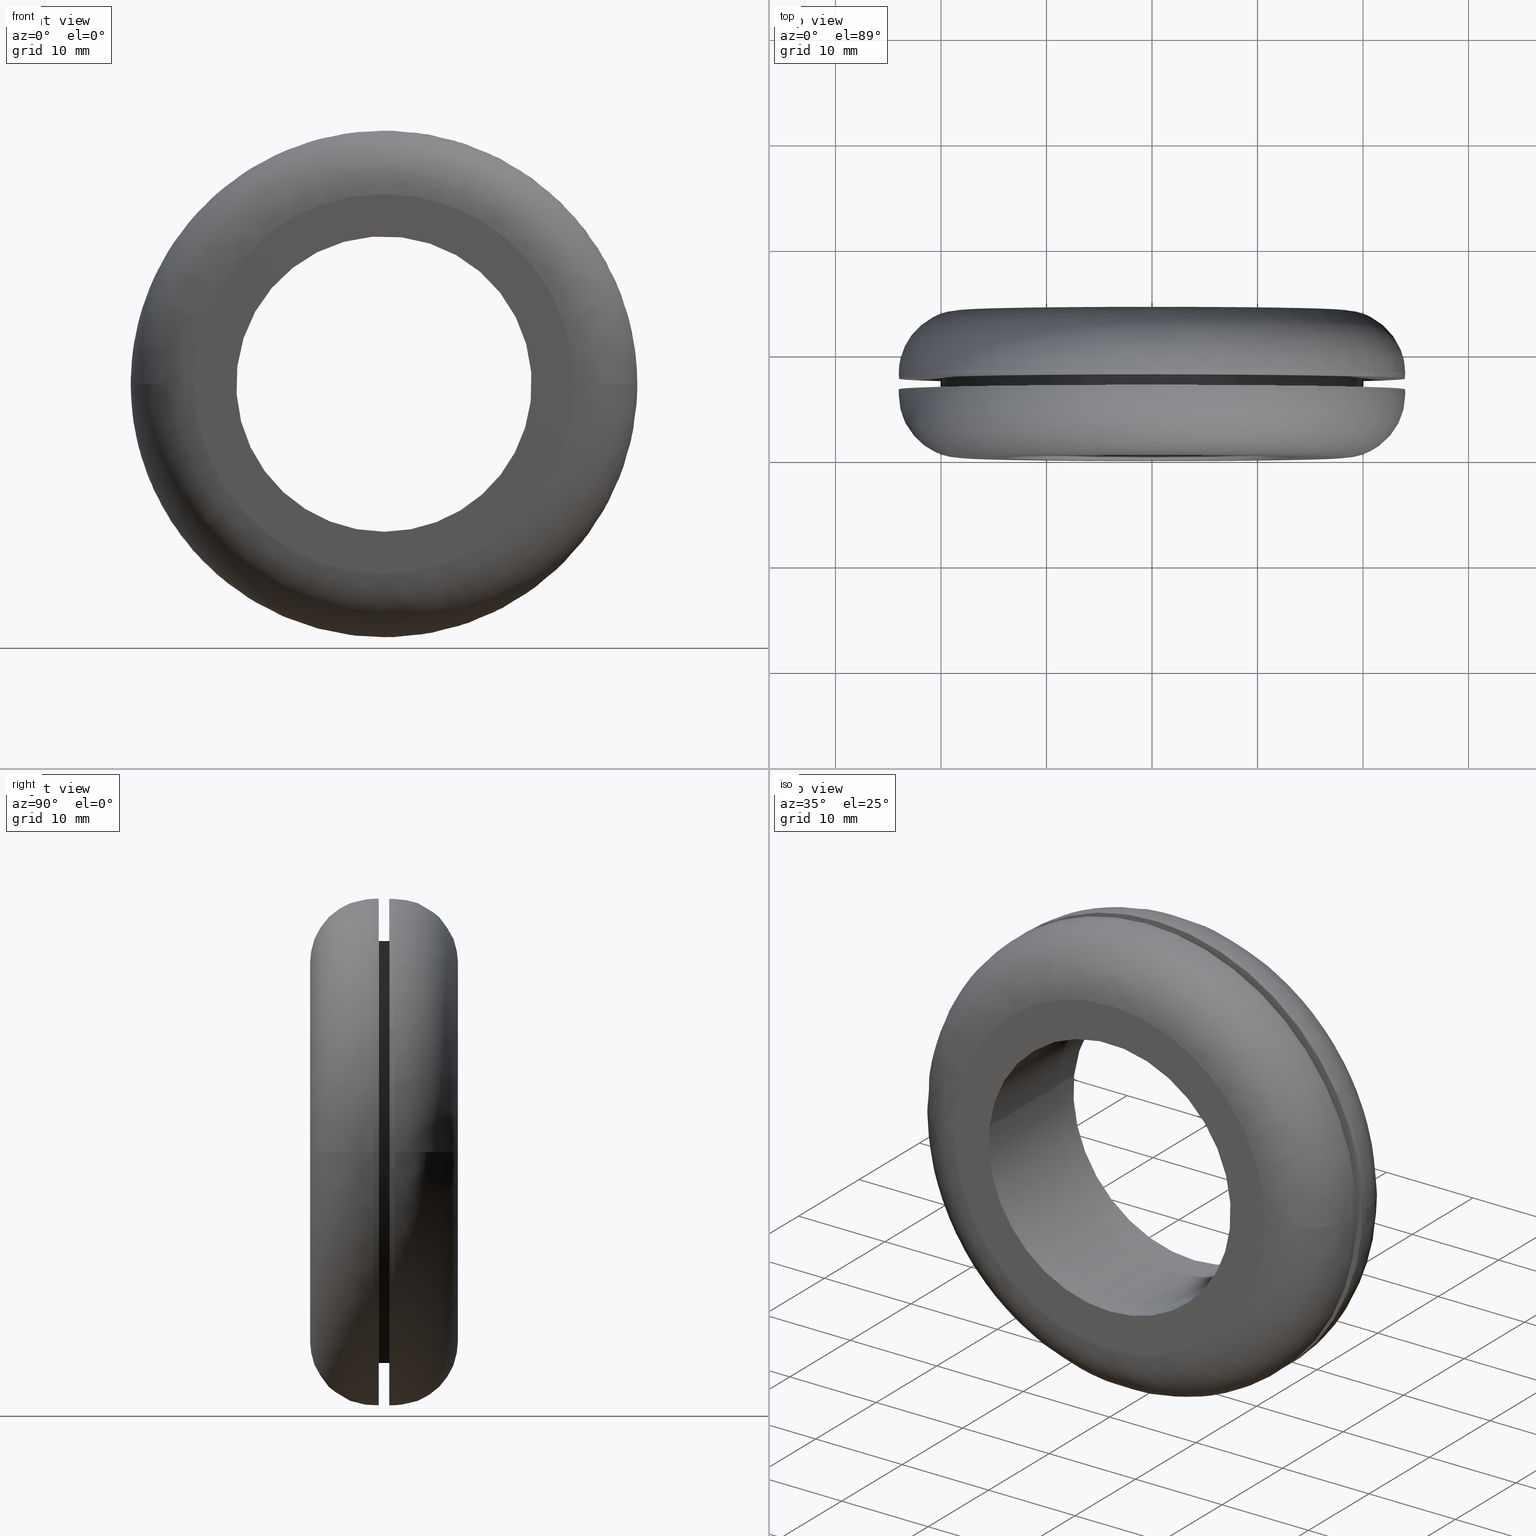
[diagram: canonical four-view strip — front | top / right | iso, engineering-drawing reading convention]
A machine part, canonical four-view strip (front | top / right | iso — engineering-drawing reading convention). The complete STEP part file that produces these views, byte-faithful:
ISO-10303-21;
HEADER;

FILE_DESCRIPTION( (''), '2;1');
FILE_NAME ('PC50.12492.TM_B_28_1_CRUL_5732.stp','2019-12-19T13:49:15',(''),(''),'spGate 15.6.1','','');

FILE_SCHEMA (('AUTOMOTIVE_DESIGN'));
ENDSEC;

DATA;
#10=(GEOMETRIC_REPRESENTATION_CONTEXT(3) GLOBAL_UNCERTAINTY_ASSIGNED_CONTEXT((#11)) GLOBAL_UNIT_ASSIGNED_CONTEXT((#12,#13,#14)) REPRESENTATION_CONTEXT('ID1','3D'));
#11=UNCERTAINTY_MEASURE_WITH_UNIT(LENGTH_MEASURE(0.01),#15,'DISTANCE_ACCURACY_VALUE','Maximum model space distance between geometric entities at asserted connectivities');
#12=(NAMED_UNIT(*) SI_UNIT($,.STERADIAN.) SOLID_ANGLE_UNIT());
#13=(CONVERSION_BASED_UNIT('DEGREE',#16) NAMED_UNIT(#17) PLANE_ANGLE_UNIT());
#14=(LENGTH_UNIT() NAMED_UNIT(*) SI_UNIT(.MILLI.,.METRE.));
#15=(LENGTH_UNIT() NAMED_UNIT(*) SI_UNIT(.MILLI.,.METRE.));
#16=PLANE_ANGLE_MEASURE_WITH_UNIT(PLANE_ANGLE_MEASURE(0.01745329252),#18);
#17=DIMENSIONAL_EXPONENTS(0.0,0.0,0.0,0.0,0.0,0.0,0.0);
#18=(NAMED_UNIT(*) PLANE_ANGLE_UNIT() SI_UNIT($,.RADIAN.));
#19=MANIFOLD_SOLID_BREP('TM_B_28_1',#31);
#20=ADVANCED_BREP_SHAPE_REPRESENTATION('',(#19),#10);
#21=APPLICATION_CONTEXT('');
#22=APPLICATION_PROTOCOL_DEFINITION('International Standard','automotive_design',1999,#21);
#23=PRODUCT_DEFINITION_CONTEXT('',#21,'design');
#24=PRODUCT_CONTEXT('',#21,'mechanical');
#25=PRODUCT('','','',(#24));
#26=PRODUCT_DEFINITION_FORMATION_WITH_SPECIFIED_SOURCE('','',#25,.NOT_KNOWN.);
#27=PRODUCT_RELATED_PRODUCT_CATEGORY('tool','tool',(#25));
#28=PRODUCT_DEFINITION('','',#26,#23);
#29=PRODUCT_DEFINITION_SHAPE('','',#28);
#30=SHAPE_DEFINITION_REPRESENTATION(#29,#20);
#31=CLOSED_SHELL('',(#40,#41,#42,#43,#44,#45,#46,#47,#48,#49,#50,#51,#52,#53,#54,#55));
#32=COLOUR_RGB('',0.00000000000E+000,0.00000000000E+000,0.00000000000E+000);
#33=FILL_AREA_STYLE_COLOUR('',#32);
#34=FILL_AREA_STYLE('',(#33));
#35=SURFACE_STYLE_FILL_AREA(#34);
#36=SURFACE_SIDE_STYLE('',(#35));
#37=SURFACE_STYLE_USAGE(.BOTH.,#36);
#38=PRESENTATION_STYLE_ASSIGNMENT((#37));
#39=STYLED_ITEM('',(#38),#19);
#40=ADVANCED_FACE('',(#57,#58),#56,.F.);
#41=ADVANCED_FACE('',(#68,#69),#67,.F.);
#42=ADVANCED_FACE('',(#79,#80),#78,.F.);
#43=ADVANCED_FACE('',(#90,#91),#89,.F.);
#44=ADVANCED_FACE('',(#101),#100,.T.);
#45=ADVANCED_FACE('',(#111),#110,.T.);
#46=ADVANCED_FACE('',(#121),#120,.T.);
#47=ADVANCED_FACE('',(#131),#130,.T.);
#48=ADVANCED_FACE('',(#141),#140,.F.);
#49=ADVANCED_FACE('',(#151),#150,.F.);
#50=ADVANCED_FACE('',(#161),#160,.T.);
#51=ADVANCED_FACE('',(#171),#170,.T.);
#52=ADVANCED_FACE('',(#181),#180,.T.);
#53=ADVANCED_FACE('',(#191),#190,.T.);
#54=ADVANCED_FACE('',(#201),#200,.T.);
#55=ADVANCED_FACE('',(#211),#210,.T.);
#56=PLANE('',#223);
#57=FACE_OUTER_BOUND('',#224,.T.);
#58=FACE_BOUND('',#225,.T.);
#59=COLOUR_RGB('',1.00000000000E+000,1.00000000000E+000,1.00000000000E+000);
#60=FILL_AREA_STYLE_COLOUR('',#59);
#61=FILL_AREA_STYLE('',(#60));
#62=SURFACE_STYLE_FILL_AREA(#61);
#63=SURFACE_SIDE_STYLE('',(#62));
#64=SURFACE_STYLE_USAGE(.BOTH.,#63);
#65=PRESENTATION_STYLE_ASSIGNMENT((#64));
#66=STYLED_ITEM('',(#65),#40);
#67=PLANE('',#229);
#68=FACE_OUTER_BOUND('',#230,.T.);
#69=FACE_BOUND('',#231,.T.);
#70=COLOUR_RGB('',1.00000000000E+000,1.00000000000E+000,1.00000000000E+000);
#71=FILL_AREA_STYLE_COLOUR('',#70);
#72=FILL_AREA_STYLE('',(#71));
#73=SURFACE_STYLE_FILL_AREA(#72);
#74=SURFACE_SIDE_STYLE('',(#73));
#75=SURFACE_STYLE_USAGE(.BOTH.,#74);
#76=PRESENTATION_STYLE_ASSIGNMENT((#75));
#77=STYLED_ITEM('',(#76),#41);
#78=PLANE('',#235);
#79=FACE_OUTER_BOUND('',#236,.T.);
#80=FACE_BOUND('',#237,.T.);
#81=COLOUR_RGB('',1.00000000000E+000,1.00000000000E+000,1.00000000000E+000);
#82=FILL_AREA_STYLE_COLOUR('',#81);
#83=FILL_AREA_STYLE('',(#82));
#84=SURFACE_STYLE_FILL_AREA(#83);
#85=SURFACE_SIDE_STYLE('',(#84));
#86=SURFACE_STYLE_USAGE(.BOTH.,#85);
#87=PRESENTATION_STYLE_ASSIGNMENT((#86));
#88=STYLED_ITEM('',(#87),#42);
#89=PLANE('',#241);
#90=FACE_OUTER_BOUND('',#242,.T.);
#91=FACE_BOUND('',#243,.T.);
#92=COLOUR_RGB('',1.00000000000E+000,1.00000000000E+000,1.00000000000E+000);
#93=FILL_AREA_STYLE_COLOUR('',#92);
#94=FILL_AREA_STYLE('',(#93));
#95=SURFACE_STYLE_FILL_AREA(#94);
#96=SURFACE_SIDE_STYLE('',(#95));
#97=SURFACE_STYLE_USAGE(.BOTH.,#96);
#98=PRESENTATION_STYLE_ASSIGNMENT((#97));
#99=STYLED_ITEM('',(#98),#43);
#100=CYLINDRICAL_SURFACE('',#247,2.40000000000E+001);
#101=FACE_OUTER_BOUND('',#248,.T.);
#102=COLOUR_RGB('',1.00000000000E+000,1.00000000000E+000,1.00000000000E+000);
#103=FILL_AREA_STYLE_COLOUR('',#102);
#104=FILL_AREA_STYLE('',(#103));
#105=SURFACE_STYLE_FILL_AREA(#104);
#106=SURFACE_SIDE_STYLE('',(#105));
#107=SURFACE_STYLE_USAGE(.BOTH.,#106);
#108=PRESENTATION_STYLE_ASSIGNMENT((#107));
#109=STYLED_ITEM('',(#108),#44);
#110=CYLINDRICAL_SURFACE('',#252,2.40000000000E+001);
#111=FACE_OUTER_BOUND('',#253,.T.);
#112=COLOUR_RGB('',1.00000000000E+000,1.00000000000E+000,1.00000000000E+000);
#113=FILL_AREA_STYLE_COLOUR('',#112);
#114=FILL_AREA_STYLE('',(#113));
#115=SURFACE_STYLE_FILL_AREA(#114);
#116=SURFACE_SIDE_STYLE('',(#115));
#117=SURFACE_STYLE_USAGE(.BOTH.,#116);
#118=PRESENTATION_STYLE_ASSIGNMENT((#117));
#119=STYLED_ITEM('',(#118),#45);
#120=CYLINDRICAL_SURFACE('',#257,2.00000000000E+001);
#121=FACE_OUTER_BOUND('',#258,.T.);
#122=COLOUR_RGB('',1.00000000000E+000,1.00000000000E+000,1.00000000000E+000);
#123=FILL_AREA_STYLE_COLOUR('',#122);
#124=FILL_AREA_STYLE('',(#123));
#125=SURFACE_STYLE_FILL_AREA(#124);
#126=SURFACE_SIDE_STYLE('',(#125));
#127=SURFACE_STYLE_USAGE(.BOTH.,#126);
#128=PRESENTATION_STYLE_ASSIGNMENT((#127));
#129=STYLED_ITEM('',(#128),#46);
#130=CYLINDRICAL_SURFACE('',#262,2.00000000000E+001);
#131=FACE_OUTER_BOUND('',#263,.T.);
#132=COLOUR_RGB('',1.00000000000E+000,1.00000000000E+000,1.00000000000E+000);
#133=FILL_AREA_STYLE_COLOUR('',#132);
#134=FILL_AREA_STYLE('',(#133));
#135=SURFACE_STYLE_FILL_AREA(#134);
#136=SURFACE_SIDE_STYLE('',(#135));
#137=SURFACE_STYLE_USAGE(.BOTH.,#136);
#138=PRESENTATION_STYLE_ASSIGNMENT((#137));
#139=STYLED_ITEM('',(#138),#47);
#140=CYLINDRICAL_SURFACE('',#267,1.40000000000E+001);
#141=FACE_OUTER_BOUND('',#268,.T.);
#142=COLOUR_RGB('',1.00000000000E+000,1.00000000000E+000,1.00000000000E+000);
#143=FILL_AREA_STYLE_COLOUR('',#142);
#144=FILL_AREA_STYLE('',(#143));
#145=SURFACE_STYLE_FILL_AREA(#144);
#146=SURFACE_SIDE_STYLE('',(#145));
#147=SURFACE_STYLE_USAGE(.BOTH.,#146);
#148=PRESENTATION_STYLE_ASSIGNMENT((#147));
#149=STYLED_ITEM('',(#148),#48);
#150=CYLINDRICAL_SURFACE('',#272,1.40000000000E+001);
#151=FACE_OUTER_BOUND('',#273,.T.);
#152=COLOUR_RGB('',1.00000000000E+000,1.00000000000E+000,1.00000000000E+000);
#153=FILL_AREA_STYLE_COLOUR('',#152);
#154=FILL_AREA_STYLE('',(#153));
#155=SURFACE_STYLE_FILL_AREA(#154);
#156=SURFACE_SIDE_STYLE('',(#155));
#157=SURFACE_STYLE_USAGE(.BOTH.,#156);
#158=PRESENTATION_STYLE_ASSIGNMENT((#157));
#159=STYLED_ITEM('',(#158),#49);
#160=CYLINDRICAL_SURFACE('',#277,2.40000000000E+001);
#161=FACE_OUTER_BOUND('',#278,.T.);
#162=COLOUR_RGB('',1.00000000000E+000,1.00000000000E+000,1.00000000000E+000);
#163=FILL_AREA_STYLE_COLOUR('',#162);
#164=FILL_AREA_STYLE('',(#163));
#165=SURFACE_STYLE_FILL_AREA(#164);
#166=SURFACE_SIDE_STYLE('',(#165));
#167=SURFACE_STYLE_USAGE(.BOTH.,#166);
#168=PRESENTATION_STYLE_ASSIGNMENT((#167));
#169=STYLED_ITEM('',(#168),#50);
#170=CYLINDRICAL_SURFACE('',#282,2.40000000000E+001);
#171=FACE_OUTER_BOUND('',#283,.T.);
#172=COLOUR_RGB('',1.00000000000E+000,1.00000000000E+000,1.00000000000E+000);
#173=FILL_AREA_STYLE_COLOUR('',#172);
#174=FILL_AREA_STYLE('',(#173));
#175=SURFACE_STYLE_FILL_AREA(#174);
#176=SURFACE_SIDE_STYLE('',(#175));
#177=SURFACE_STYLE_USAGE(.BOTH.,#176);
#178=PRESENTATION_STYLE_ASSIGNMENT((#177));
#179=STYLED_ITEM('',(#178),#51);
#180=( BOUNDED_SURFACE() B_SPLINE_SURFACE( 2,2,((#284,#285,#286,#287,#288),(#289,#290,#291,#292,#293),(#294,#295,#296,#297,#298),(#299,#300,#301,#302,#303),(#304,#305,#306,#307,#308)), .UNSPECIFIED.,.F.,.F.,.F.) B_SPLINE_SURFACE_WITH_KNOTS((3,2,3),(3,2,3),(0.00000000000E+000,5.00000000000E-001,1.00000000000E+000),(0.00000000000E+000,5.00000000000E-001,1.00000000000E+000), .UNSPECIFIED. ) GEOMETRIC_REPRESENTATION_ITEM() RATIONAL_B_SPLINE_SURFACE(((1.00000000000E+000,7.07106781087E-001,1.00000000000E+000,7.07106781087E-001,1.00000000000E+000),(7.07106781187E-001,4.99999999930E-001,7.07106781187E-001,4.99999999930E-001,7.07106781187E-001),(1.00000000000E+000,7.07106781087E-001,1.00000000000E+000,7.07106781087E-001,1.00000000000E+000),(7.07106781187E-001,4.99999999930E-001,7.07106781187E-001,4.99999999930E-001,7.07106781187E-001),(1.00000000000E+000,7.07106781087E-001,1.00000000000E+000,7.07106781087E-001,1.00000000000E+000))) REPRESENTATION_ITEM('') SURFACE() );
#181=FACE_OUTER_BOUND('',#309,.T.);
#182=COLOUR_RGB('',1.00000000000E+000,1.00000000000E+000,1.00000000000E+000);
#183=FILL_AREA_STYLE_COLOUR('',#182);
#184=FILL_AREA_STYLE('',(#183));
#185=SURFACE_STYLE_FILL_AREA(#184);
#186=SURFACE_SIDE_STYLE('',(#185));
#187=SURFACE_STYLE_USAGE(.BOTH.,#186);
#188=PRESENTATION_STYLE_ASSIGNMENT((#187));
#189=STYLED_ITEM('',(#188),#52);
#190=( BOUNDED_SURFACE() B_SPLINE_SURFACE( 2,2,((#310,#311,#312,#313,#314),(#315,#316,#317,#318,#319),(#320,#321,#322,#323,#324),(#325,#326,#327,#328,#329),(#330,#331,#332,#333,#334)), .UNSPECIFIED.,.F.,.F.,.F.) B_SPLINE_SURFACE_WITH_KNOTS((3,2,3),(3,2,3),(0.00000000000E+000,5.00000000000E-001,1.00000000000E+000),(0.00000000000E+000,5.00000000000E-001,1.00000000000E+000), .UNSPECIFIED. ) GEOMETRIC_REPRESENTATION_ITEM() RATIONAL_B_SPLINE_SURFACE(((1.00000000000E+000,7.07106781087E-001,1.00000000000E+000,7.07106781087E-001,1.00000000000E+000),(7.07106781187E-001,4.99999999930E-001,7.07106781187E-001,4.99999999930E-001,7.07106781187E-001),(1.00000000000E+000,7.07106781087E-001,1.00000000000E+000,7.07106781087E-001,1.00000000000E+000),(7.07106781187E-001,4.99999999930E-001,7.07106781187E-001,4.99999999930E-001,7.07106781187E-001),(1.00000000000E+000,7.07106781087E-001,1.00000000000E+000,7.07106781087E-001,1.00000000000E+000))) REPRESENTATION_ITEM('') SURFACE() );
#191=FACE_OUTER_BOUND('',#335,.T.);
#192=COLOUR_RGB('',1.00000000000E+000,1.00000000000E+000,1.00000000000E+000);
#193=FILL_AREA_STYLE_COLOUR('',#192);
#194=FILL_AREA_STYLE('',(#193));
#195=SURFACE_STYLE_FILL_AREA(#194);
#196=SURFACE_SIDE_STYLE('',(#195));
#197=SURFACE_STYLE_USAGE(.BOTH.,#196);
#198=PRESENTATION_STYLE_ASSIGNMENT((#197));
#199=STYLED_ITEM('',(#198),#53);
#200=( BOUNDED_SURFACE() B_SPLINE_SURFACE( 2,2,((#336,#337,#338,#339,#340),(#341,#342,#343,#344,#345),(#346,#347,#348,#349,#350),(#351,#352,#353,#354,#355),(#356,#357,#358,#359,#360)), .UNSPECIFIED.,.F.,.F.,.F.) B_SPLINE_SURFACE_WITH_KNOTS((3,2,3),(3,2,3),(0.00000000000E+000,5.00000000000E-001,1.00000000000E+000),(0.00000000000E+000,5.00000000000E-001,1.00000000000E+000), .UNSPECIFIED. ) GEOMETRIC_REPRESENTATION_ITEM() RATIONAL_B_SPLINE_SURFACE(((1.00000000000E+000,7.07106780923E-001,1.00000000000E+000,7.07106780923E-001,1.00000000000E+000),(7.07106781187E-001,4.99999999814E-001,7.07106781187E-001,4.99999999814E-001,7.07106781187E-001),(1.00000000000E+000,7.07106780923E-001,1.00000000000E+000,7.07106780923E-001,1.00000000000E+000),(7.07106781187E-001,4.99999999814E-001,7.07106781187E-001,4.99999999814E-001,7.07106781187E-001),(1.00000000000E+000,7.07106780923E-001,1.00000000000E+000,7.07106780923E-001,1.00000000000E+000))) REPRESENTATION_ITEM('') SURFACE() );
#201=FACE_OUTER_BOUND('',#361,.T.);
#202=COLOUR_RGB('',1.00000000000E+000,1.00000000000E+000,1.00000000000E+000);
#203=FILL_AREA_STYLE_COLOUR('',#202);
#204=FILL_AREA_STYLE('',(#203));
#205=SURFACE_STYLE_FILL_AREA(#204);
#206=SURFACE_SIDE_STYLE('',(#205));
#207=SURFACE_STYLE_USAGE(.BOTH.,#206);
#208=PRESENTATION_STYLE_ASSIGNMENT((#207));
#209=STYLED_ITEM('',(#208),#54);
#210=( BOUNDED_SURFACE() B_SPLINE_SURFACE( 2,2,((#362,#363,#364,#365,#366),(#367,#368,#369,#370,#371),(#372,#373,#374,#375,#376),(#377,#378,#379,#380,#381),(#382,#383,#384,#385,#386)), .UNSPECIFIED.,.F.,.F.,.F.) B_SPLINE_SURFACE_WITH_KNOTS((3,2,3),(3,2,3),(0.00000000000E+000,5.00000000000E-001,1.00000000000E+000),(0.00000000000E+000,5.00000000000E-001,1.00000000000E+000), .UNSPECIFIED. ) GEOMETRIC_REPRESENTATION_ITEM() RATIONAL_B_SPLINE_SURFACE(((1.00000000000E+000,7.07106780923E-001,1.00000000000E+000,7.07106780923E-001,1.00000000000E+000),(7.07106781187E-001,4.99999999814E-001,7.07106781187E-001,4.99999999814E-001,7.07106781187E-001),(1.00000000000E+000,7.07106780923E-001,1.00000000000E+000,7.07106780923E-001,1.00000000000E+000),(7.07106781187E-001,4.99999999814E-001,7.07106781187E-001,4.99999999814E-001,7.07106781187E-001),(1.00000000000E+000,7.07106780923E-001,1.00000000000E+000,7.07106780923E-001,1.00000000000E+000))) REPRESENTATION_ITEM('') SURFACE() );
#211=FACE_OUTER_BOUND('',#387,.T.);
#212=COLOUR_RGB('',1.00000000000E+000,1.00000000000E+000,1.00000000000E+000);
#213=FILL_AREA_STYLE_COLOUR('',#212);
#214=FILL_AREA_STYLE('',(#213));
#215=SURFACE_STYLE_FILL_AREA(#214);
#216=SURFACE_SIDE_STYLE('',(#215));
#217=SURFACE_STYLE_USAGE(.BOTH.,#216);
#218=PRESENTATION_STYLE_ASSIGNMENT((#217));
#219=STYLED_ITEM('',(#218),#55);
#220=CARTESIAN_POINT('',(-5.47912625963E+001,6.50000000000E+000,5.38951855374E+001));
#221=DIRECTION('',(0.00000000000E+000,-1.00000000000E+000,0.00000000000E+000));
#222=DIRECTION('',(0.00000000000E+000,0.00000000000E+000,-1.00000000000E+000));
#223=AXIS2_PLACEMENT_3D('',#220,#221,#222);
#224=EDGE_LOOP('',(#388,#389,#390));
#225=EDGE_LOOP('',(#391,#392,#393));
#226=CARTESIAN_POINT('',(-4.98830632580E+001,7.50000000000E+000,-3.12000000000E+001));
#227=DIRECTION('',(0.00000000000E+000,1.00000000000E+000,0.00000000000E+000));
#228=DIRECTION('',(0.00000000000E+000,0.00000000000E+000,1.00000000000E+000));
#229=AXIS2_PLACEMENT_3D('',#226,#227,#228);
#230=EDGE_LOOP('',(#394,#395,#396));
#231=EDGE_LOOP('',(#397,#398,#399));
#232=CARTESIAN_POINT('',(-3.74122974457E+001,1.40000000000E+001,4.14000000015E+001));
#233=DIRECTION('',(0.00000000000E+000,-1.00000000000E+000,0.00000000000E+000));
#234=DIRECTION('',(0.00000000000E+000,0.00000000000E+000,-1.00000000000E+000));
#235=AXIS2_PLACEMENT_3D('',#232,#233,#234);
#236=EDGE_LOOP('',(#400,#401,#402));
#237=EDGE_LOOP('',(#403,#404,#405));
#238=CARTESIAN_POINT('',(-3.74122974442E+001,-2.61810400000E-015,-4.14000000005E+001));
#239=DIRECTION('',(0.00000000000E+000,1.00000000000E+000,0.00000000000E+000));
#240=DIRECTION('',(0.00000000000E+000,0.00000000000E+000,1.00000000000E+000));
#241=AXIS2_PLACEMENT_3D('',#238,#239,#240);
#242=EDGE_LOOP('',(#406,#407,#408));
#243=EDGE_LOOP('',(#409,#410,#411));
#244=CARTESIAN_POINT('',(3.56866369254E-015,6.51250000000E+000,5.11506909612E-016));
#245=DIRECTION('',(6.07258107847E-017,1.00000000000E+000,4.53312971987E-017));
#246=DIRECTION('',(6.54339657003E-001,-7.40148683083E-017,7.56200775769E-001));
#247=AXIS2_PLACEMENT_3D('',#244,#245,#246);
#248=EDGE_LOOP('',(#412,#413,#414,#415,#416,#417));
#249=CARTESIAN_POINT('',(3.56866369254E-015,6.51250000000E+000,5.11506909612E-016));
#250=DIRECTION('',(6.07258107847E-017,1.00000000000E+000,4.53312971987E-017));
#251=DIRECTION('',(6.54339657003E-001,-7.40148683083E-017,7.56200775769E-001));
#252=AXIS2_PLACEMENT_3D('',#249,#250,#251);
#253=EDGE_LOOP('',(#418,#419,#420,#421,#422,#423,#424,#425));
#254=CARTESIAN_POINT('',(5.33590252572E-015,7.52500000000E+000,-2.19990708368E-015));
#255=DIRECTION('',(2.11141779566E-016,1.00000000000E+000,2.15255108187E-015));
#256=DIRECTION('',(-9.93009526364E-001,-4.44089209850E-017,1.18034234657E-001));
#257=AXIS2_PLACEMENT_3D('',#254,#255,#256);
#258=EDGE_LOOP('',(#426,#427,#428,#429));
#259=CARTESIAN_POINT('',(5.33590252572E-015,7.52500000000E+000,-2.19990708368E-015));
#260=DIRECTION('',(2.11141779566E-016,1.00000000000E+000,2.15255108187E-015));
#261=DIRECTION('',(-9.93009526364E-001,-4.44089209850E-017,1.18034234657E-001));
#262=AXIS2_PLACEMENT_3D('',#259,#260,#261);
#263=EDGE_LOOP('',(#430,#431,#432,#433,#434,#435));
#264=CARTESIAN_POINT('',(7.75920443272E-016,1.43500000000E+001,-5.97720691732E-015));
#265=DIRECTION('',(-8.60270273437E-017,1.00000000000E+000,-1.86253946138E-016));
#266=DIRECTION('',(-9.93009526364E-001,-6.34413156929E-017,1.18034234657E-001));
#267=AXIS2_PLACEMENT_3D('',#264,#265,#266);
#268=EDGE_LOOP('',(#436,#437,#438,#439));
#269=CARTESIAN_POINT('',(7.75920443272E-016,1.43500000000E+001,-5.97720691732E-015));
#270=DIRECTION('',(-8.60270273437E-017,1.00000000000E+000,-1.86253946138E-016));
#271=DIRECTION('',(-9.93009526364E-001,-6.34413156929E-017,1.18034234657E-001));
#272=AXIS2_PLACEMENT_3D('',#269,#270,#271);
#273=EDGE_LOOP('',(#440,#441,#442,#443,#444,#445));
#274=CARTESIAN_POINT('',(5.76352026975E-015,8.01250000006E+000,7.18306713296E-015));
#275=DIRECTION('',(-3.66999007292E-017,1.00000000000E+000,2.95594623595E-016));
#276=DIRECTION('',(-8.74946427443E-001,1.11022302463E-016,-4.84219732254E-001));
#277=AXIS2_PLACEMENT_3D('',#274,#275,#276);
#278=EDGE_LOOP('',(#446,#447,#448,#449,#450,#451));
#279=CARTESIAN_POINT('',(5.76352026975E-015,8.01250000006E+000,7.18306713296E-015));
#280=DIRECTION('',(-3.66999007292E-017,1.00000000000E+000,2.95594623595E-016));
#281=DIRECTION('',(-8.74946427443E-001,1.11022302463E-016,-4.84219732254E-001));
#282=AXIS2_PLACEMENT_3D('',#279,#280,#281);
#283=EDGE_LOOP('',(#452,#453,#454,#455,#456,#457,#458,#459));
#284=CARTESIAN_POINT('',(-2.40000000000E+001,6.00000000000E+000,-4.02325742166E-015));
#285=CARTESIAN_POINT('',(-2.40000000000E+001,-1.68431103296E-009,-4.65761157700E-015));
#286=CARTESIAN_POINT('',(-1.79999999983E+001,-8.88178419700E-016,-3.92284776433E-015));
#287=CARTESIAN_POINT('',(-1.19999999966E+001,1.68430852081E-009,-3.18808395165E-015));
#288=CARTESIAN_POINT('',(-1.20000000000E+001,6.00000000337E+000,-2.55372979672E-015));
#289=CARTESIAN_POINT('',(-2.40000000000E+001,6.00000000000E+000,-2.40000000000E+001));
#290=CARTESIAN_POINT('',(-2.40000000000E+001,-1.68430821603E-009,-2.40000000000E+001));
#291=CARTESIAN_POINT('',(-1.79999999983E+001,1.47158218899E-015,-1.79999999983E+001));
#292=CARTESIAN_POINT('',(-1.19999999966E+001,1.68430956137E-009,-1.19999999966E+001));
#293=CARTESIAN_POINT('',(-1.20000000000E+001,6.00000000337E+000,-1.20000000000E+001));
#294=CARTESIAN_POINT('',(-5.46941481371E-015,6.00000000000E+000,-2.40000000000E+001));
#295=CARTESIAN_POINT('',(-6.13648419865E-015,-1.68431103296E-009,-2.40000000000E+001));
#296=CARTESIAN_POINT('',(-6.50385397112E-015,-8.88178419700E-016,-1.79999999983E+001));
#297=CARTESIAN_POINT('',(-6.87122374359E-015,1.68430852081E-009,-1.19999999966E+001));
#298=CARTESIAN_POINT('',(-6.20415435843E-015,6.00000000337E+000,-1.20000000000E+001));
#299=CARTESIAN_POINT('',(2.40000000000E+001,6.00000000000E+000,-2.40000000000E+001));
#300=CARTESIAN_POINT('',(2.40000000000E+001,-1.68431406539E-009,-2.40000000000E+001));
#301=CARTESIAN_POINT('',(1.79999999983E+001,-2.66453525910E-015,-1.79999999983E+001));
#302=CARTESIAN_POINT('',(1.19999999966E+001,1.68430726473E-009,-1.19999999966E+001));
#303=CARTESIAN_POINT('',(1.20000000000E+001,6.00000000337E+000,-1.20000000000E+001));
#304=CARTESIAN_POINT('',(2.40000000000E+001,6.00000000000E+000,-1.08429924127E-015));
#305=CARTESIAN_POINT('',(2.40000000000E+001,-1.68431605725E-009,-1.71865339661E-015));
#306=CARTESIAN_POINT('',(1.79999999983E+001,-5.32907051820E-015,-1.71862912924E-015));
#307=CARTESIAN_POINT('',(1.19999999966E+001,1.68430600866E-009,-1.71860486186E-015));
#308=CARTESIAN_POINT('',(1.20000000000E+001,6.00000000337E+000,-1.08425070652E-015));
#309=EDGE_LOOP('',(#460,#461,#462,#463,#464,#465));
#310=CARTESIAN_POINT('',(2.40000000000E+001,6.00000000000E+000,-1.08429924127E-015));
#311=CARTESIAN_POINT('',(2.40000000000E+001,-1.68431731333E-009,-1.71865339661E-015));
#312=CARTESIAN_POINT('',(1.79999999983E+001,-4.44089209850E-015,-1.71862912924E-015));
#313=CARTESIAN_POINT('',(1.19999999966E+001,1.68430726473E-009,-1.71860486186E-015));
#314=CARTESIAN_POINT('',(1.20000000000E+001,6.00000000337E+000,-1.08425070652E-015));
#315=CARTESIAN_POINT('',(2.40000000000E+001,6.00000000000E+000,2.40000000000E+001));
#316=CARTESIAN_POINT('',(2.40000000000E+001,-1.68432013025E-009,2.40000000000E+001));
#317=CARTESIAN_POINT('',(1.79999999983E+001,-6.80065270719E-015,1.79999999983E+001));
#318=CARTESIAN_POINT('',(1.19999999966E+001,1.68430622417E-009,1.19999999966E+001));
#319=CARTESIAN_POINT('',(1.20000000000E+001,6.00000000337E+000,1.20000000000E+001));
#320=CARTESIAN_POINT('',(-5.46922067615E-015,6.00000000000E+000,2.40000000000E+001));
#321=CARTESIAN_POINT('',(-6.13629006110E-015,-1.68431731333E-009,2.40000000000E+001));
#322=CARTESIAN_POINT('',(-6.50370836795E-015,-4.44089209850E-015,1.79999999983E+001));
#323=CARTESIAN_POINT('',(-6.87112667481E-015,1.68430726473E-009,1.19999999966E+001));
#324=CARTESIAN_POINT('',(-6.20405728965E-015,6.00000000337E+000,1.20000000000E+001));
#325=CARTESIAN_POINT('',(-2.40000000000E+001,6.00000000000E+000,2.40000000000E+001));
#326=CARTESIAN_POINT('',(-2.40000000000E+001,-1.68431428090E-009,2.40000000000E+001));
#327=CARTESIAN_POINT('',(-1.79999999983E+001,-2.66453525910E-015,1.79999999983E+001));
#328=CARTESIAN_POINT('',(-1.19999999966E+001,1.68430852081E-009,1.19999999966E+001));
#329=CARTESIAN_POINT('',(-1.20000000000E+001,6.00000000337E+000,1.20000000000E+001));
#330=CARTESIAN_POINT('',(-2.40000000000E+001,6.00000000000E+000,1.85504721425E-015));
#331=CARTESIAN_POINT('',(-2.40000000000E+001,-1.68431228903E-009,1.22069305890E-015));
#332=CARTESIAN_POINT('',(-1.79999999983E+001,0.00000000000E+000,4.85880712192E-016));
#333=CARTESIAN_POINT('',(-1.19999999966E+001,1.68430977688E-009,-2.48931634520E-016));
#334=CARTESIAN_POINT('',(-1.20000000000E+001,6.00000000337E+000,3.85422521237E-016));
#335=EDGE_LOOP('',(#466,#467,#468,#469,#470,#471,#472,#473));
#336=CARTESIAN_POINT('',(-1.20000000000E+001,7.99999999108E+000,1.53354542896E-013));
#337=CARTESIAN_POINT('',(-1.19999999911E+001,1.39999999955E+001,-4.13591451213E-014));
#338=CARTESIAN_POINT('',(-1.79999999955E+001,1.40000000000E+001,-4.20939090792E-014));
#339=CARTESIAN_POINT('',(-2.40000000000E+001,1.40000000045E+001,-4.28286730372E-014));
#340=CARTESIAN_POINT('',(-2.40000000000E+001,8.00000000003E+000,1.51885014982E-013));
#341=CARTESIAN_POINT('',(-1.20000000000E+001,7.99999999108E+000,-1.20000000000E+001));
#342=CARTESIAN_POINT('',(-1.19999999911E+001,1.39999999955E+001,-1.19999999911E+001));
#343=CARTESIAN_POINT('',(-1.79999999955E+001,1.40000000000E+001,-1.79999999955E+001));
#344=CARTESIAN_POINT('',(-2.40000000000E+001,1.40000000045E+001,-2.40000000000E+001));
#345=CARTESIAN_POINT('',(-2.40000000000E+001,8.00000000003E+000,-2.40000000000E+001));
#346=CARTESIAN_POINT('',(-1.49459690267E-012,7.99999999107E+000,-1.20000000000E+001));
#347=CARTESIAN_POINT('',(2.47732892202E-012,1.39999999955E+001,-1.19999999911E+001));
#348=CARTESIAN_POINT('',(2.47769629475E-012,1.40000000000E+001,-1.79999999955E+001));
#349=CARTESIAN_POINT('',(2.47806366748E-012,1.40000000045E+001,-2.40000000000E+001));
#350=CARTESIAN_POINT('',(-1.49386215720E-012,8.00000000001E+000,-2.40000000000E+001));
#351=CARTESIAN_POINT('',(1.20000000000E+001,7.99999999106E+000,-1.20000000000E+001));
#352=CARTESIAN_POINT('',(1.19999999911E+001,1.39999999955E+001,-1.19999999911E+001));
#353=CARTESIAN_POINT('',(1.79999999955E+001,1.40000000000E+001,-1.79999999955E+001));
#354=CARTESIAN_POINT('',(2.40000000000E+001,1.40000000045E+001,-2.40000000000E+001));
#355=CARTESIAN_POINT('',(2.40000000000E+001,8.00000000000E+000,-2.40000000000E+001));
#356=CARTESIAN_POINT('',(1.20000000000E+001,7.99999999106E+000,1.54824021987E-013));
#357=CARTESIAN_POINT('',(1.19999999911E+001,1.39999999955E+001,-3.98896660322E-014));
#358=CARTESIAN_POINT('',(1.79999999955E+001,1.40000000000E+001,-3.98896904445E-014));
#359=CARTESIAN_POINT('',(2.40000000000E+001,1.40000000045E+001,-3.98897148568E-014));
#360=CARTESIAN_POINT('',(2.40000000000E+001,8.00000000000E+000,1.54823973162E-013));
#361=EDGE_LOOP('',(#474,#475,#476,#477,#478,#479,#480,#481));
#362=CARTESIAN_POINT('',(1.20000000000E+001,7.99999999106E+000,1.54824021987E-013));
#363=CARTESIAN_POINT('',(1.19999999911E+001,1.39999999955E+001,-3.98896660322E-014));
#364=CARTESIAN_POINT('',(1.79999999955E+001,1.40000000000E+001,-3.98896904445E-014));
#365=CARTESIAN_POINT('',(2.40000000000E+001,1.40000000045E+001,-3.98897148568E-014));
#366=CARTESIAN_POINT('',(2.40000000000E+001,8.00000000000E+000,1.54823973162E-013));
#367=CARTESIAN_POINT('',(1.20000000000E+001,7.99999999106E+000,1.20000000000E+001));
#368=CARTESIAN_POINT('',(1.19999999911E+001,1.39999999955E+001,1.19999999911E+001));
#369=CARTESIAN_POINT('',(1.79999999955E+001,1.40000000000E+001,1.79999999955E+001));
#370=CARTESIAN_POINT('',(2.40000000000E+001,1.40000000045E+001,2.40000000000E+001));
#371=CARTESIAN_POINT('',(2.40000000000E+001,8.00000000000E+000,2.40000000000E+001));
#372=CARTESIAN_POINT('',(-1.49459680560E-012,7.99999999107E+000,1.20000000000E+001));
#373=CARTESIAN_POINT('',(2.47732901909E-012,1.39999999955E+001,1.19999999911E+001));
#374=CARTESIAN_POINT('',(2.47769644035E-012,1.40000000000E+001,1.79999999955E+001));
#375=CARTESIAN_POINT('',(2.47806386162E-012,1.40000000045E+001,2.40000000000E+001));
#376=CARTESIAN_POINT('',(-1.49386196306E-012,8.00000000001E+000,2.40000000000E+001));
#377=CARTESIAN_POINT('',(-1.20000000000E+001,7.99999999108E+000,1.20000000000E+001));
#378=CARTESIAN_POINT('',(-1.19999999911E+001,1.39999999956E+001,1.19999999911E+001));
#379=CARTESIAN_POINT('',(-1.79999999955E+001,1.40000000000E+001,1.79999999955E+001));
#380=CARTESIAN_POINT('',(-2.40000000000E+001,1.40000000045E+001,2.40000000000E+001));
#381=CARTESIAN_POINT('',(-2.40000000000E+001,8.00000000003E+000,2.40000000000E+001));
#382=CARTESIAN_POINT('',(-1.20000000000E+001,7.99999999108E+000,1.56293695214E-013));
#383=CARTESIAN_POINT('',(-1.19999999911E+001,1.39999999955E+001,-3.84199928056E-014));
#384=CARTESIAN_POINT('',(-1.79999999955E+001,1.40000000000E+001,-3.76851806034E-014));
#385=CARTESIAN_POINT('',(-2.40000000000E+001,1.40000000045E+001,-3.69503684012E-014));
#386=CARTESIAN_POINT('',(-2.40000000000E+001,8.00000000003E+000,1.57763319618E-013));
#387=EDGE_LOOP('',(#482,#483,#484,#485,#486,#487));
#388=ORIENTED_EDGE('',*,*,#488,.F.);
#389=ORIENTED_EDGE('',*,*,#489,.F.);
#390=ORIENTED_EDGE('',*,*,#490,.F.);
#391=ORIENTED_EDGE('',*,*,#491,.T.);
#392=ORIENTED_EDGE('',*,*,#492,.T.);
#393=ORIENTED_EDGE('',*,*,#493,.T.);
#394=ORIENTED_EDGE('',*,*,#494,.T.);
#395=ORIENTED_EDGE('',*,*,#495,.T.);
#396=ORIENTED_EDGE('',*,*,#496,.T.);
#397=ORIENTED_EDGE('',*,*,#497,.F.);
#398=ORIENTED_EDGE('',*,*,#498,.F.);
#399=ORIENTED_EDGE('',*,*,#499,.F.);
#400=ORIENTED_EDGE('',*,*,#500,.F.);
#401=ORIENTED_EDGE('',*,*,#501,.F.);
#402=ORIENTED_EDGE('',*,*,#502,.F.);
#403=ORIENTED_EDGE('',*,*,#503,.T.);
#404=ORIENTED_EDGE('',*,*,#504,.T.);
#405=ORIENTED_EDGE('',*,*,#505,.T.);
#406=ORIENTED_EDGE('',*,*,#506,.T.);
#407=ORIENTED_EDGE('',*,*,#507,.T.);
#408=ORIENTED_EDGE('',*,*,#508,.T.);
#409=ORIENTED_EDGE('',*,*,#509,.F.);
#410=ORIENTED_EDGE('',*,*,#510,.F.);
#411=ORIENTED_EDGE('',*,*,#511,.F.);
#412=ORIENTED_EDGE('',*,*,#489,.T.);
#413=ORIENTED_EDGE('',*,*,#512,.F.);
#414=ORIENTED_EDGE('',*,*,#513,.F.);
#415=ORIENTED_EDGE('',*,*,#514,.F.);
#416=ORIENTED_EDGE('',*,*,#515,.F.);
#417=ORIENTED_EDGE('',*,*,#516,.T.);
#418=ORIENTED_EDGE('',*,*,#517,.F.);
#419=ORIENTED_EDGE('',*,*,#518,.F.);
#420=ORIENTED_EDGE('',*,*,#519,.F.);
#421=ORIENTED_EDGE('',*,*,#520,.F.);
#422=ORIENTED_EDGE('',*,*,#512,.T.);
#423=ORIENTED_EDGE('',*,*,#488,.T.);
#424=ORIENTED_EDGE('',*,*,#490,.T.);
#425=ORIENTED_EDGE('',*,*,#516,.F.);
#426=ORIENTED_EDGE('',*,*,#498,.T.);
#427=ORIENTED_EDGE('',*,*,#521,.F.);
#428=ORIENTED_EDGE('',*,*,#492,.F.);
#429=ORIENTED_EDGE('',*,*,#522,.T.);
#430=ORIENTED_EDGE('',*,*,#491,.F.);
#431=ORIENTED_EDGE('',*,*,#493,.F.);
#432=ORIENTED_EDGE('',*,*,#521,.T.);
#433=ORIENTED_EDGE('',*,*,#497,.T.);
#434=ORIENTED_EDGE('',*,*,#499,.T.);
#435=ORIENTED_EDGE('',*,*,#522,.F.);
#436=ORIENTED_EDGE('',*,*,#510,.T.);
#437=ORIENTED_EDGE('',*,*,#523,.T.);
#438=ORIENTED_EDGE('',*,*,#504,.F.);
#439=ORIENTED_EDGE('',*,*,#524,.F.);
#440=ORIENTED_EDGE('',*,*,#503,.F.);
#441=ORIENTED_EDGE('',*,*,#505,.F.);
#442=ORIENTED_EDGE('',*,*,#523,.F.);
#443=ORIENTED_EDGE('',*,*,#509,.T.);
#444=ORIENTED_EDGE('',*,*,#511,.T.);
#445=ORIENTED_EDGE('',*,*,#524,.T.);
#446=ORIENTED_EDGE('',*,*,#525,.T.);
#447=ORIENTED_EDGE('',*,*,#526,.T.);
#448=ORIENTED_EDGE('',*,*,#527,.T.);
#449=ORIENTED_EDGE('',*,*,#528,.F.);
#450=ORIENTED_EDGE('',*,*,#495,.F.);
#451=ORIENTED_EDGE('',*,*,#529,.T.);
#452=ORIENTED_EDGE('',*,*,#494,.F.);
#453=ORIENTED_EDGE('',*,*,#496,.F.);
#454=ORIENTED_EDGE('',*,*,#528,.T.);
#455=ORIENTED_EDGE('',*,*,#530,.T.);
#456=ORIENTED_EDGE('',*,*,#531,.T.);
#457=ORIENTED_EDGE('',*,*,#532,.T.);
#458=ORIENTED_EDGE('',*,*,#533,.T.);
#459=ORIENTED_EDGE('',*,*,#529,.F.);
#460=ORIENTED_EDGE('',*,*,#507,.F.);
#461=ORIENTED_EDGE('',*,*,#534,.F.);
#462=ORIENTED_EDGE('',*,*,#517,.T.);
#463=ORIENTED_EDGE('',*,*,#515,.T.);
#464=ORIENTED_EDGE('',*,*,#514,.T.);
#465=ORIENTED_EDGE('',*,*,#535,.T.);
#466=ORIENTED_EDGE('',*,*,#513,.T.);
#467=ORIENTED_EDGE('',*,*,#520,.T.);
#468=ORIENTED_EDGE('',*,*,#519,.T.);
#469=ORIENTED_EDGE('',*,*,#518,.T.);
#470=ORIENTED_EDGE('',*,*,#534,.T.);
#471=ORIENTED_EDGE('',*,*,#506,.F.);
#472=ORIENTED_EDGE('',*,*,#508,.F.);
#473=ORIENTED_EDGE('',*,*,#535,.F.);
#474=ORIENTED_EDGE('',*,*,#532,.F.);
#475=ORIENTED_EDGE('',*,*,#531,.F.);
#476=ORIENTED_EDGE('',*,*,#530,.F.);
#477=ORIENTED_EDGE('',*,*,#527,.F.);
#478=ORIENTED_EDGE('',*,*,#536,.F.);
#479=ORIENTED_EDGE('',*,*,#500,.T.);
#480=ORIENTED_EDGE('',*,*,#502,.T.);
#481=ORIENTED_EDGE('',*,*,#537,.T.);
#482=ORIENTED_EDGE('',*,*,#501,.T.);
#483=ORIENTED_EDGE('',*,*,#536,.T.);
#484=ORIENTED_EDGE('',*,*,#526,.F.);
#485=ORIENTED_EDGE('',*,*,#525,.F.);
#486=ORIENTED_EDGE('',*,*,#533,.F.);
#487=ORIENTED_EDGE('',*,*,#537,.F.);
#488=EDGE_CURVE('',#538,#539,#540,.T.);
#489=EDGE_CURVE('',#546,#538,#547,.T.);
#490=EDGE_CURVE('',#539,#546,#553,.T.);
#491=EDGE_CURVE('',#559,#560,#561,.T.);
#492=EDGE_CURVE('',#560,#567,#568,.T.);
#493=EDGE_CURVE('',#567,#559,#574,.T.);
#494=EDGE_CURVE('',#580,#581,#582,.T.);
#495=EDGE_CURVE('',#581,#588,#589,.T.);
#496=EDGE_CURVE('',#588,#580,#595,.T.);
#497=EDGE_CURVE('',#601,#602,#603,.T.);
#498=EDGE_CURVE('',#609,#601,#610,.T.);
#499=EDGE_CURVE('',#602,#609,#616,.T.);
#500=EDGE_CURVE('',#622,#623,#624,.T.);
#501=EDGE_CURVE('',#630,#622,#631,.T.);
#502=EDGE_CURVE('',#623,#630,#637,.T.);
#503=EDGE_CURVE('',#643,#644,#645,.T.);
#504=EDGE_CURVE('',#644,#651,#652,.T.);
#505=EDGE_CURVE('',#651,#643,#658,.T.);
#506=EDGE_CURVE('',#664,#665,#666,.T.);
#507=EDGE_CURVE('',#665,#672,#673,.T.);
#508=EDGE_CURVE('',#672,#664,#679,.T.);
#509=EDGE_CURVE('',#685,#686,#687,.T.);
#510=EDGE_CURVE('',#693,#685,#694,.T.);
#511=EDGE_CURVE('',#686,#693,#700,.T.);
#512=EDGE_CURVE('',#706,#538,#707,.T.);
#513=EDGE_CURVE('',#713,#706,#714,.T.);
#514=EDGE_CURVE('',#720,#713,#721,.T.);
#515=EDGE_CURVE('',#727,#720,#728,.T.);
#516=EDGE_CURVE('',#727,#546,#734,.T.);
#517=EDGE_CURVE('',#740,#727,#741,.T.);
#518=EDGE_CURVE('',#747,#740,#748,.T.);
#519=EDGE_CURVE('',#754,#747,#755,.T.);
#520=EDGE_CURVE('',#706,#754,#761,.T.);
#521=EDGE_CURVE('',#567,#601,#767,.T.);
#522=EDGE_CURVE('',#560,#609,#773,.T.);
#523=EDGE_CURVE('',#685,#651,#779,.T.);
#524=EDGE_CURVE('',#693,#644,#785,.T.);
#525=EDGE_CURVE('',#791,#792,#793,.T.);
#526=EDGE_CURVE('',#792,#799,#800,.T.);
#527=EDGE_CURVE('',#799,#806,#807,.T.);
#528=EDGE_CURVE('',#588,#806,#813,.T.);
#529=EDGE_CURVE('',#581,#791,#819,.T.);
#530=EDGE_CURVE('',#806,#825,#826,.T.);
#531=EDGE_CURVE('',#825,#832,#833,.T.);
#532=EDGE_CURVE('',#832,#839,#840,.T.);
#533=EDGE_CURVE('',#839,#791,#846,.T.);
#534=EDGE_CURVE('',#740,#665,#852,.T.);
#535=EDGE_CURVE('',#713,#672,#858,.T.);
#536=EDGE_CURVE('',#622,#799,#864,.T.);
#537=EDGE_CURVE('',#630,#839,#870,.T.);
#538=VERTEX_POINT('',#876);
#539=VERTEX_POINT('',#877);
#540=CIRCLE('',#881,2.40000000000E+001);
#541=COLOUR_RGB('',1.00000000000E+000,1.00000000000E+000,1.00000000000E+000);
#542=DRAUGHTING_PRE_DEFINED_CURVE_FONT('continuous');
#543=CURVE_STYLE( '',#542, POSITIVE_LENGTH_MEASURE(1.00000000000E-006),#541);
#544=PRESENTATION_STYLE_ASSIGNMENT((#543));
#545=STYLED_ITEM('',(#544),#488);
#546=VERTEX_POINT('',#882);
#547=CIRCLE('',#886,2.40000000000E+001);
#548=COLOUR_RGB('',1.00000000000E+000,1.00000000000E+000,1.00000000000E+000);
#549=DRAUGHTING_PRE_DEFINED_CURVE_FONT('continuous');
#550=CURVE_STYLE( '',#549, POSITIVE_LENGTH_MEASURE(1.00000000000E-006),#548);
#551=PRESENTATION_STYLE_ASSIGNMENT((#550));
#552=STYLED_ITEM('',(#551),#489);
#553=CIRCLE('',#890,2.40000000000E+001);
#554=COLOUR_RGB('',1.00000000000E+000,1.00000000000E+000,1.00000000000E+000);
#555=DRAUGHTING_PRE_DEFINED_CURVE_FONT('continuous');
#556=CURVE_STYLE( '',#555, POSITIVE_LENGTH_MEASURE(1.00000000000E-006),#554);
#557=PRESENTATION_STYLE_ASSIGNMENT((#556));
#558=STYLED_ITEM('',(#557),#490);
#559=VERTEX_POINT('',#891);
#560=VERTEX_POINT('',#892);
#561=CIRCLE('',#896,2.00000000000E+001);
#562=COLOUR_RGB('',1.00000000000E+000,1.00000000000E+000,1.00000000000E+000);
#563=DRAUGHTING_PRE_DEFINED_CURVE_FONT('continuous');
#564=CURVE_STYLE( '',#563, POSITIVE_LENGTH_MEASURE(1.00000000000E-006),#562);
#565=PRESENTATION_STYLE_ASSIGNMENT((#564));
#566=STYLED_ITEM('',(#565),#491);
#567=VERTEX_POINT('',#897);
#568=CIRCLE('',#901,2.00000000000E+001);
#569=COLOUR_RGB('',1.00000000000E+000,1.00000000000E+000,1.00000000000E+000);
#570=DRAUGHTING_PRE_DEFINED_CURVE_FONT('continuous');
#571=CURVE_STYLE( '',#570, POSITIVE_LENGTH_MEASURE(1.00000000000E-006),#569);
#572=PRESENTATION_STYLE_ASSIGNMENT((#571));
#573=STYLED_ITEM('',(#572),#492);
#574=CIRCLE('',#905,2.00000000000E+001);
#575=COLOUR_RGB('',1.00000000000E+000,1.00000000000E+000,1.00000000000E+000);
#576=DRAUGHTING_PRE_DEFINED_CURVE_FONT('continuous');
#577=CURVE_STYLE( '',#576, POSITIVE_LENGTH_MEASURE(1.00000000000E-006),#575);
#578=PRESENTATION_STYLE_ASSIGNMENT((#577));
#579=STYLED_ITEM('',(#578),#493);
#580=VERTEX_POINT('',#906);
#581=VERTEX_POINT('',#907);
#582=CIRCLE('',#911,2.40000000000E+001);
#583=COLOUR_RGB('',1.00000000000E+000,1.00000000000E+000,1.00000000000E+000);
#584=DRAUGHTING_PRE_DEFINED_CURVE_FONT('continuous');
#585=CURVE_STYLE( '',#584, POSITIVE_LENGTH_MEASURE(1.00000000000E-006),#583);
#586=PRESENTATION_STYLE_ASSIGNMENT((#585));
#587=STYLED_ITEM('',(#586),#494);
#588=VERTEX_POINT('',#912);
#589=CIRCLE('',#916,2.40000000000E+001);
#590=COLOUR_RGB('',1.00000000000E+000,1.00000000000E+000,1.00000000000E+000);
#591=DRAUGHTING_PRE_DEFINED_CURVE_FONT('continuous');
#592=CURVE_STYLE( '',#591, POSITIVE_LENGTH_MEASURE(1.00000000000E-006),#590);
#593=PRESENTATION_STYLE_ASSIGNMENT((#592));
#594=STYLED_ITEM('',(#593),#495);
#595=CIRCLE('',#920,2.40000000000E+001);
#596=COLOUR_RGB('',1.00000000000E+000,1.00000000000E+000,1.00000000000E+000);
#597=DRAUGHTING_PRE_DEFINED_CURVE_FONT('continuous');
#598=CURVE_STYLE( '',#597, POSITIVE_LENGTH_MEASURE(1.00000000000E-006),#596);
#599=PRESENTATION_STYLE_ASSIGNMENT((#598));
#600=STYLED_ITEM('',(#599),#496);
#601=VERTEX_POINT('',#921);
#602=VERTEX_POINT('',#922);
#603=CIRCLE('',#926,2.00000000000E+001);
#604=COLOUR_RGB('',1.00000000000E+000,1.00000000000E+000,1.00000000000E+000);
#605=DRAUGHTING_PRE_DEFINED_CURVE_FONT('continuous');
#606=CURVE_STYLE( '',#605, POSITIVE_LENGTH_MEASURE(1.00000000000E-006),#604);
#607=PRESENTATION_STYLE_ASSIGNMENT((#606));
#608=STYLED_ITEM('',(#607),#497);
#609=VERTEX_POINT('',#927);
#610=CIRCLE('',#931,2.00000000000E+001);
#611=COLOUR_RGB('',1.00000000000E+000,1.00000000000E+000,1.00000000000E+000);
#612=DRAUGHTING_PRE_DEFINED_CURVE_FONT('continuous');
#613=CURVE_STYLE( '',#612, POSITIVE_LENGTH_MEASURE(1.00000000000E-006),#611);
#614=PRESENTATION_STYLE_ASSIGNMENT((#613));
#615=STYLED_ITEM('',(#614),#498);
#616=CIRCLE('',#935,2.00000000000E+001);
#617=COLOUR_RGB('',1.00000000000E+000,1.00000000000E+000,1.00000000000E+000);
#618=DRAUGHTING_PRE_DEFINED_CURVE_FONT('continuous');
#619=CURVE_STYLE( '',#618, POSITIVE_LENGTH_MEASURE(1.00000000000E-006),#617);
#620=PRESENTATION_STYLE_ASSIGNMENT((#619));
#621=STYLED_ITEM('',(#620),#499);
#622=VERTEX_POINT('',#936);
#623=VERTEX_POINT('',#937);
#624=CIRCLE('',#941,1.80000000011E+001);
#625=COLOUR_RGB('',1.00000000000E+000,1.00000000000E+000,1.00000000000E+000);
#626=DRAUGHTING_PRE_DEFINED_CURVE_FONT('continuous');
#627=CURVE_STYLE( '',#626, POSITIVE_LENGTH_MEASURE(1.00000000000E-006),#625);
#628=PRESENTATION_STYLE_ASSIGNMENT((#627));
#629=STYLED_ITEM('',(#628),#500);
#630=VERTEX_POINT('',#942);
#631=CIRCLE('',#946,1.80000000011E+001);
#632=COLOUR_RGB('',1.00000000000E+000,1.00000000000E+000,1.00000000000E+000);
#633=DRAUGHTING_PRE_DEFINED_CURVE_FONT('continuous');
#634=CURVE_STYLE( '',#633, POSITIVE_LENGTH_MEASURE(1.00000000000E-006),#632);
#635=PRESENTATION_STYLE_ASSIGNMENT((#634));
#636=STYLED_ITEM('',(#635),#501);
#637=CIRCLE('',#950,1.80000000011E+001);
#638=COLOUR_RGB('',1.00000000000E+000,1.00000000000E+000,1.00000000000E+000);
#639=DRAUGHTING_PRE_DEFINED_CURVE_FONT('continuous');
#640=CURVE_STYLE( '',#639, POSITIVE_LENGTH_MEASURE(1.00000000000E-006),#638);
#641=PRESENTATION_STYLE_ASSIGNMENT((#640));
#642=STYLED_ITEM('',(#641),#502);
#643=VERTEX_POINT('',#951);
#644=VERTEX_POINT('',#952);
#645=CIRCLE('',#956,1.40000000000E+001);
#646=COLOUR_RGB('',1.00000000000E+000,1.00000000000E+000,1.00000000000E+000);
#647=DRAUGHTING_PRE_DEFINED_CURVE_FONT('continuous');
#648=CURVE_STYLE( '',#647, POSITIVE_LENGTH_MEASURE(1.00000000000E-006),#646);
#649=PRESENTATION_STYLE_ASSIGNMENT((#648));
#650=STYLED_ITEM('',(#649),#503);
#651=VERTEX_POINT('',#957);
#652=CIRCLE('',#961,1.40000000000E+001);
#653=COLOUR_RGB('',1.00000000000E+000,1.00000000000E+000,1.00000000000E+000);
#654=DRAUGHTING_PRE_DEFINED_CURVE_FONT('continuous');
#655=CURVE_STYLE( '',#654, POSITIVE_LENGTH_MEASURE(1.00000000000E-006),#653);
#656=PRESENTATION_STYLE_ASSIGNMENT((#655));
#657=STYLED_ITEM('',(#656),#504);
#658=CIRCLE('',#965,1.40000000000E+001);
#659=COLOUR_RGB('',1.00000000000E+000,1.00000000000E+000,1.00000000000E+000);
#660=DRAUGHTING_PRE_DEFINED_CURVE_FONT('continuous');
#661=CURVE_STYLE( '',#660, POSITIVE_LENGTH_MEASURE(1.00000000000E-006),#659);
#662=PRESENTATION_STYLE_ASSIGNMENT((#661));
#663=STYLED_ITEM('',(#662),#505);
#664=VERTEX_POINT('',#966);
#665=VERTEX_POINT('',#967);
#666=CIRCLE('',#971,1.80000000004E+001);
#667=COLOUR_RGB('',1.00000000000E+000,1.00000000000E+000,1.00000000000E+000);
#668=DRAUGHTING_PRE_DEFINED_CURVE_FONT('continuous');
#669=CURVE_STYLE( '',#668, POSITIVE_LENGTH_MEASURE(1.00000000000E-006),#667);
#670=PRESENTATION_STYLE_ASSIGNMENT((#669));
#671=STYLED_ITEM('',(#670),#506);
#672=VERTEX_POINT('',#972);
#673=CIRCLE('',#976,1.80000000004E+001);
#674=COLOUR_RGB('',1.00000000000E+000,1.00000000000E+000,1.00000000000E+000);
#675=DRAUGHTING_PRE_DEFINED_CURVE_FONT('continuous');
#676=CURVE_STYLE( '',#675, POSITIVE_LENGTH_MEASURE(1.00000000000E-006),#674);
#677=PRESENTATION_STYLE_ASSIGNMENT((#676));
#678=STYLED_ITEM('',(#677),#507);
#679=CIRCLE('',#980,1.80000000004E+001);
#680=COLOUR_RGB('',1.00000000000E+000,1.00000000000E+000,1.00000000000E+000);
#681=DRAUGHTING_PRE_DEFINED_CURVE_FONT('continuous');
#682=CURVE_STYLE( '',#681, POSITIVE_LENGTH_MEASURE(1.00000000000E-006),#680);
#683=PRESENTATION_STYLE_ASSIGNMENT((#682));
#684=STYLED_ITEM('',(#683),#508);
#685=VERTEX_POINT('',#981);
#686=VERTEX_POINT('',#982);
#687=CIRCLE('',#986,1.40000000000E+001);
#688=COLOUR_RGB('',1.00000000000E+000,1.00000000000E+000,1.00000000000E+000);
#689=DRAUGHTING_PRE_DEFINED_CURVE_FONT('continuous');
#690=CURVE_STYLE( '',#689, POSITIVE_LENGTH_MEASURE(1.00000000000E-006),#688);
#691=PRESENTATION_STYLE_ASSIGNMENT((#690));
#692=STYLED_ITEM('',(#691),#509);
#693=VERTEX_POINT('',#987);
#694=CIRCLE('',#991,1.40000000000E+001);
#695=COLOUR_RGB('',1.00000000000E+000,1.00000000000E+000,1.00000000000E+000);
#696=DRAUGHTING_PRE_DEFINED_CURVE_FONT('continuous');
#697=CURVE_STYLE( '',#696, POSITIVE_LENGTH_MEASURE(1.00000000000E-006),#695);
#698=PRESENTATION_STYLE_ASSIGNMENT((#697));
#699=STYLED_ITEM('',(#698),#510);
#700=CIRCLE('',#995,1.40000000000E+001);
#701=COLOUR_RGB('',1.00000000000E+000,1.00000000000E+000,1.00000000000E+000);
#702=DRAUGHTING_PRE_DEFINED_CURVE_FONT('continuous');
#703=CURVE_STYLE( '',#702, POSITIVE_LENGTH_MEASURE(1.00000000000E-006),#701);
#704=PRESENTATION_STYLE_ASSIGNMENT((#703));
#705=STYLED_ITEM('',(#704),#511);
#706=VERTEX_POINT('',#996);
#707=(BOUNDED_CURVE() B_SPLINE_CURVE(1,(#997,#998),.UNSPECIFIED.,.F.,.F.) B_SPLINE_CURVE_WITH_KNOTS((2,2),(8.33334128067E-002,9.16666680514E-001),.UNSPECIFIED.) CURVE() GEOMETRIC_REPRESENTATION_ITEM() RATIONAL_B_SPLINE_CURVE((1.00000000000E+000,1.00000000000E+000)) REPRESENTATION_ITEM('') );
#708=COLOUR_RGB('',1.00000000000E+000,1.00000000000E+000,1.00000000000E+000);
#709=DRAUGHTING_PRE_DEFINED_CURVE_FONT('continuous');
#710=CURVE_STYLE( '',#709, POSITIVE_LENGTH_MEASURE(1.00000000000E-006),#708);
#711=PRESENTATION_STYLE_ASSIGNMENT((#710));
#712=STYLED_ITEM('',(#711),#512);
#713=VERTEX_POINT('',#999);
#714=CIRCLE('',#1003,2.40000000000E+001);
#715=COLOUR_RGB('',1.00000000000E+000,1.00000000000E+000,1.00000000000E+000);
#716=DRAUGHTING_PRE_DEFINED_CURVE_FONT('continuous');
#717=CURVE_STYLE( '',#716, POSITIVE_LENGTH_MEASURE(1.00000000000E-006),#715);
#718=PRESENTATION_STYLE_ASSIGNMENT((#717));
#719=STYLED_ITEM('',(#718),#513);
#720=VERTEX_POINT('',#1004);
#721=CIRCLE('',#1008,2.40000000000E+001);
#722=COLOUR_RGB('',1.00000000000E+000,1.00000000000E+000,1.00000000000E+000);
#723=DRAUGHTING_PRE_DEFINED_CURVE_FONT('continuous');
#724=CURVE_STYLE( '',#723, POSITIVE_LENGTH_MEASURE(1.00000000000E-006),#722);
#725=PRESENTATION_STYLE_ASSIGNMENT((#724));
#726=STYLED_ITEM('',(#725),#514);
#727=VERTEX_POINT('',#1009);
#728=CIRCLE('',#1013,2.40000000000E+001);
#729=COLOUR_RGB('',1.00000000000E+000,1.00000000000E+000,1.00000000000E+000);
#730=DRAUGHTING_PRE_DEFINED_CURVE_FONT('continuous');
#731=CURVE_STYLE( '',#730, POSITIVE_LENGTH_MEASURE(1.00000000000E-006),#729);
#732=PRESENTATION_STYLE_ASSIGNMENT((#731));
#733=STYLED_ITEM('',(#732),#515);
#734=(BOUNDED_CURVE() B_SPLINE_CURVE(1,(#1014,#1015),.UNSPECIFIED.,.F.,.F.) B_SPLINE_CURVE_WITH_KNOTS((2,2),(8.33333333690E-002,9.16666666665E-001),.UNSPECIFIED.) CURVE() GEOMETRIC_REPRESENTATION_ITEM() RATIONAL_B_SPLINE_CURVE((7.50000000000E-001,7.50000000000E-001)) REPRESENTATION_ITEM('') );
#735=COLOUR_RGB('',1.00000000000E+000,1.00000000000E+000,1.00000000000E+000);
#736=DRAUGHTING_PRE_DEFINED_CURVE_FONT('continuous');
#737=CURVE_STYLE( '',#736, POSITIVE_LENGTH_MEASURE(1.00000000000E-006),#735);
#738=PRESENTATION_STYLE_ASSIGNMENT((#737));
#739=STYLED_ITEM('',(#738),#516);
#740=VERTEX_POINT('',#1016);
#741=CIRCLE('',#1020,2.40000000000E+001);
#742=COLOUR_RGB('',1.00000000000E+000,1.00000000000E+000,1.00000000000E+000);
#743=DRAUGHTING_PRE_DEFINED_CURVE_FONT('continuous');
#744=CURVE_STYLE( '',#743, POSITIVE_LENGTH_MEASURE(1.00000000000E-006),#742);
#745=PRESENTATION_STYLE_ASSIGNMENT((#744));
#746=STYLED_ITEM('',(#745),#517);
#747=VERTEX_POINT('',#1021);
#748=CIRCLE('',#1025,2.40000000000E+001);
#749=COLOUR_RGB('',1.00000000000E+000,1.00000000000E+000,1.00000000000E+000);
#750=DRAUGHTING_PRE_DEFINED_CURVE_FONT('continuous');
#751=CURVE_STYLE( '',#750, POSITIVE_LENGTH_MEASURE(1.00000000000E-006),#749);
#752=PRESENTATION_STYLE_ASSIGNMENT((#751));
#753=STYLED_ITEM('',(#752),#518);
#754=VERTEX_POINT('',#1026);
#755=CIRCLE('',#1030,2.40000000000E+001);
#756=COLOUR_RGB('',1.00000000000E+000,1.00000000000E+000,1.00000000000E+000);
#757=DRAUGHTING_PRE_DEFINED_CURVE_FONT('continuous');
#758=CURVE_STYLE( '',#757, POSITIVE_LENGTH_MEASURE(1.00000000000E-006),#756);
#759=PRESENTATION_STYLE_ASSIGNMENT((#758));
#760=STYLED_ITEM('',(#759),#519);
#761=CIRCLE('',#1034,2.40000000000E+001);
#762=COLOUR_RGB('',1.00000000000E+000,1.00000000000E+000,1.00000000000E+000);
#763=DRAUGHTING_PRE_DEFINED_CURVE_FONT('continuous');
#764=CURVE_STYLE( '',#763, POSITIVE_LENGTH_MEASURE(1.00000000000E-006),#762);
#765=PRESENTATION_STYLE_ASSIGNMENT((#764));
#766=STYLED_ITEM('',(#765),#520);
#767=(BOUNDED_CURVE() B_SPLINE_CURVE(1,(#1035,#1036),.UNSPECIFIED.,.F.,.F.) B_SPLINE_CURVE_WITH_KNOTS((2,2),(8.33333730703E-002,9.16666640476E-001),.UNSPECIFIED.) CURVE() GEOMETRIC_REPRESENTATION_ITEM() RATIONAL_B_SPLINE_CURVE((1.00000000000E+000,1.00000000000E+000)) REPRESENTATION_ITEM('') );
#768=COLOUR_RGB('',1.00000000000E+000,1.00000000000E+000,1.00000000000E+000);
#769=DRAUGHTING_PRE_DEFINED_CURVE_FONT('continuous');
#770=CURVE_STYLE( '',#769, POSITIVE_LENGTH_MEASURE(1.00000000000E-006),#768);
#771=PRESENTATION_STYLE_ASSIGNMENT((#770));
#772=STYLED_ITEM('',(#771),#521);
#773=(BOUNDED_CURVE() B_SPLINE_CURVE(1,(#1037,#1038),.UNSPECIFIED.,.F.,.F.) B_SPLINE_CURVE_WITH_KNOTS((2,2),(8.33333333368E-002,9.16666666667E-001),.UNSPECIFIED.) CURVE() GEOMETRIC_REPRESENTATION_ITEM() RATIONAL_B_SPLINE_CURVE((7.50000000000E-001,7.50000000000E-001)) REPRESENTATION_ITEM('') );
#774=COLOUR_RGB('',1.00000000000E+000,1.00000000000E+000,1.00000000000E+000);
#775=DRAUGHTING_PRE_DEFINED_CURVE_FONT('continuous');
#776=CURVE_STYLE( '',#775, POSITIVE_LENGTH_MEASURE(1.00000000000E-006),#774);
#777=PRESENTATION_STYLE_ASSIGNMENT((#776));
#778=STYLED_ITEM('',(#777),#522);
#779=(BOUNDED_CURVE() B_SPLINE_CURVE(1,(#1039,#1040),.UNSPECIFIED.,.F.,.F.) B_SPLINE_CURVE_WITH_KNOTS((2,2),(8.33333328360E-002,9.16666666871E-001),.UNSPECIFIED.) CURVE() GEOMETRIC_REPRESENTATION_ITEM() RATIONAL_B_SPLINE_CURVE((1.00000000000E+000,1.00000000000E+000)) REPRESENTATION_ITEM('') );
#780=COLOUR_RGB('',1.00000000000E+000,1.00000000000E+000,1.00000000000E+000);
#781=DRAUGHTING_PRE_DEFINED_CURVE_FONT('continuous');
#782=CURVE_STYLE( '',#781, POSITIVE_LENGTH_MEASURE(1.00000000000E-006),#780);
#783=PRESENTATION_STYLE_ASSIGNMENT((#782));
#784=STYLED_ITEM('',(#783),#523);
#785=(BOUNDED_CURVE() B_SPLINE_CURVE(1,(#1041,#1042),.UNSPECIFIED.,.F.,.F.) B_SPLINE_CURVE_WITH_KNOTS((2,2),(8.33333333333E-002,9.16666666667E-001),.UNSPECIFIED.) CURVE() GEOMETRIC_REPRESENTATION_ITEM() RATIONAL_B_SPLINE_CURVE((7.50000000000E-001,7.50000000000E-001)) REPRESENTATION_ITEM('') );
#786=COLOUR_RGB('',1.00000000000E+000,1.00000000000E+000,1.00000000000E+000);
#787=DRAUGHTING_PRE_DEFINED_CURVE_FONT('continuous');
#788=CURVE_STYLE( '',#787, POSITIVE_LENGTH_MEASURE(1.00000000000E-006),#786);
#789=PRESENTATION_STYLE_ASSIGNMENT((#788));
#790=STYLED_ITEM('',(#789),#524);
#791=VERTEX_POINT('',#1043);
#792=VERTEX_POINT('',#1044);
#793=CIRCLE('',#1048,2.40000000000E+001);
#794=COLOUR_RGB('',1.00000000000E+000,1.00000000000E+000,1.00000000000E+000);
#795=DRAUGHTING_PRE_DEFINED_CURVE_FONT('continuous');
#796=CURVE_STYLE( '',#795, POSITIVE_LENGTH_MEASURE(1.00000000000E-006),#794);
#797=PRESENTATION_STYLE_ASSIGNMENT((#796));
#798=STYLED_ITEM('',(#797),#525);
#799=VERTEX_POINT('',#1049);
#800=CIRCLE('',#1053,2.40000000000E+001);
#801=COLOUR_RGB('',1.00000000000E+000,1.00000000000E+000,1.00000000000E+000);
#802=DRAUGHTING_PRE_DEFINED_CURVE_FONT('continuous');
#803=CURVE_STYLE( '',#802, POSITIVE_LENGTH_MEASURE(1.00000000000E-006),#801);
#804=PRESENTATION_STYLE_ASSIGNMENT((#803));
#805=STYLED_ITEM('',(#804),#526);
#806=VERTEX_POINT('',#1054);
#807=CIRCLE('',#1058,2.40000000000E+001);
#808=COLOUR_RGB('',1.00000000000E+000,1.00000000000E+000,1.00000000000E+000);
#809=DRAUGHTING_PRE_DEFINED_CURVE_FONT('continuous');
#810=CURVE_STYLE( '',#809, POSITIVE_LENGTH_MEASURE(1.00000000000E-006),#808);
#811=PRESENTATION_STYLE_ASSIGNMENT((#810));
#812=STYLED_ITEM('',(#811),#527);
#813=(BOUNDED_CURVE() B_SPLINE_CURVE(1,(#1059,#1060),.UNSPECIFIED.,.F.,.F.) B_SPLINE_CURVE_WITH_KNOTS((2,2),(8.33332538610E-002,9.16666666064E-001),.UNSPECIFIED.) CURVE() GEOMETRIC_REPRESENTATION_ITEM() RATIONAL_B_SPLINE_CURVE((1.00000000000E+000,1.00000000000E+000)) REPRESENTATION_ITEM('') );
#814=COLOUR_RGB('',1.00000000000E+000,1.00000000000E+000,1.00000000000E+000);
#815=DRAUGHTING_PRE_DEFINED_CURVE_FONT('continuous');
#816=CURVE_STYLE( '',#815, POSITIVE_LENGTH_MEASURE(1.00000000000E-006),#814);
#817=PRESENTATION_STYLE_ASSIGNMENT((#816));
#818=STYLED_ITEM('',(#817),#528);
#819=(BOUNDED_CURVE() B_SPLINE_CURVE(1,(#1061,#1062),.UNSPECIFIED.,.F.,.F.) B_SPLINE_CURVE_WITH_KNOTS((2,2),(8.33333333334E-002,9.16666665096E-001),.UNSPECIFIED.) CURVE() GEOMETRIC_REPRESENTATION_ITEM() RATIONAL_B_SPLINE_CURVE((7.50000000000E-001,7.50000000000E-001)) REPRESENTATION_ITEM('') );
#820=COLOUR_RGB('',1.00000000000E+000,1.00000000000E+000,1.00000000000E+000);
#821=DRAUGHTING_PRE_DEFINED_CURVE_FONT('continuous');
#822=CURVE_STYLE( '',#821, POSITIVE_LENGTH_MEASURE(1.00000000000E-006),#820);
#823=PRESENTATION_STYLE_ASSIGNMENT((#822));
#824=STYLED_ITEM('',(#823),#529);
#825=VERTEX_POINT('',#1063);
#826=CIRCLE('',#1067,2.40000000000E+001);
#827=COLOUR_RGB('',1.00000000000E+000,1.00000000000E+000,1.00000000000E+000);
#828=DRAUGHTING_PRE_DEFINED_CURVE_FONT('continuous');
#829=CURVE_STYLE( '',#828, POSITIVE_LENGTH_MEASURE(1.00000000000E-006),#827);
#830=PRESENTATION_STYLE_ASSIGNMENT((#829));
#831=STYLED_ITEM('',(#830),#530);
#832=VERTEX_POINT('',#1068);
#833=CIRCLE('',#1072,2.40000000000E+001);
#834=COLOUR_RGB('',1.00000000000E+000,1.00000000000E+000,1.00000000000E+000);
#835=DRAUGHTING_PRE_DEFINED_CURVE_FONT('continuous');
#836=CURVE_STYLE( '',#835, POSITIVE_LENGTH_MEASURE(1.00000000000E-006),#834);
#837=PRESENTATION_STYLE_ASSIGNMENT((#836));
#838=STYLED_ITEM('',(#837),#531);
#839=VERTEX_POINT('',#1073);
#840=CIRCLE('',#1077,2.40000000000E+001);
#841=COLOUR_RGB('',1.00000000000E+000,1.00000000000E+000,1.00000000000E+000);
#842=DRAUGHTING_PRE_DEFINED_CURVE_FONT('continuous');
#843=CURVE_STYLE( '',#842, POSITIVE_LENGTH_MEASURE(1.00000000000E-006),#841);
#844=PRESENTATION_STYLE_ASSIGNMENT((#843));
#845=STYLED_ITEM('',(#844),#532);
#846=CIRCLE('',#1081,2.40000000000E+001);
#847=COLOUR_RGB('',1.00000000000E+000,1.00000000000E+000,1.00000000000E+000);
#848=DRAUGHTING_PRE_DEFINED_CURVE_FONT('continuous');
#849=CURVE_STYLE( '',#848, POSITIVE_LENGTH_MEASURE(1.00000000000E-006),#847);
#850=PRESENTATION_STYLE_ASSIGNMENT((#849));
#851=STYLED_ITEM('',(#850),#533);
#852=(BOUNDED_CURVE() B_SPLINE_CURVE(2,(#1082,#1083,#1084),.UNSPECIFIED.,.F.,.F.) B_SPLINE_CURVE_WITH_KNOTS((3,3),(0.00000000000E+000,5.00000000000E-001),.UNSPECIFIED.) CURVE() GEOMETRIC_REPRESENTATION_ITEM() RATIONAL_B_SPLINE_CURVE((1.00000000000E+000,7.07106781087E-001,1.00000000000E+000)) REPRESENTATION_ITEM('') );
#853=COLOUR_RGB('',1.00000000000E+000,1.00000000000E+000,1.00000000000E+000);
#854=DRAUGHTING_PRE_DEFINED_CURVE_FONT('continuous');
#855=CURVE_STYLE( '',#854, POSITIVE_LENGTH_MEASURE(1.00000000000E-006),#853);
#856=PRESENTATION_STYLE_ASSIGNMENT((#855));
#857=STYLED_ITEM('',(#856),#534);
#858=(BOUNDED_CURVE() B_SPLINE_CURVE(3,(#1085,#1086,#1087,#1088,#1089),.UNSPECIFIED.,.F.,.F.) B_SPLINE_CURVE_WITH_KNOTS((4,1,4),(0.00000000000E+000,2.50000031493E-001,5.00000054662E-001),.UNSPECIFIED.) CURVE() GEOMETRIC_REPRESENTATION_ITEM() RATIONAL_B_SPLINE_CURVE((1.00000000000E+000,1.00000000000E+000,1.00000000000E+000,1.00000000000E+000,1.00000000000E+000)) REPRESENTATION_ITEM('') );
#859=COLOUR_RGB('',1.00000000000E+000,1.00000000000E+000,1.00000000000E+000);
#860=DRAUGHTING_PRE_DEFINED_CURVE_FONT('continuous');
#861=CURVE_STYLE( '',#860, POSITIVE_LENGTH_MEASURE(1.00000000000E-006),#859);
#862=PRESENTATION_STYLE_ASSIGNMENT((#861));
#863=STYLED_ITEM('',(#862),#535);
#864=(BOUNDED_CURVE() B_SPLINE_CURVE(2,(#1090,#1091,#1092),.UNSPECIFIED.,.F.,.F.) B_SPLINE_CURVE_WITH_KNOTS((3,3),(5.00000000000E-001,1.00000000000E+000),.UNSPECIFIED.) CURVE() GEOMETRIC_REPRESENTATION_ITEM() RATIONAL_B_SPLINE_CURVE((1.00000000000E+000,7.07106780923E-001,1.00000000000E+000)) REPRESENTATION_ITEM('') );
#865=COLOUR_RGB('',1.00000000000E+000,1.00000000000E+000,1.00000000000E+000);
#866=DRAUGHTING_PRE_DEFINED_CURVE_FONT('continuous');
#867=CURVE_STYLE( '',#866, POSITIVE_LENGTH_MEASURE(1.00000000000E-006),#865);
#868=PRESENTATION_STYLE_ASSIGNMENT((#867));
#869=STYLED_ITEM('',(#868),#536);
#870=(BOUNDED_CURVE() B_SPLINE_CURVE(3,(#1093,#1094,#1095,#1096,#1097),.UNSPECIFIED.,.F.,.F.) B_SPLINE_CURVE_WITH_KNOTS((4,1,4),(4.99999892550E-001,7.49999938093E-001,1.00000000000E+000),.UNSPECIFIED.) CURVE() GEOMETRIC_REPRESENTATION_ITEM() RATIONAL_B_SPLINE_CURVE((1.00000000000E+000,1.00000000000E+000,1.00000000000E+000,1.00000000000E+000,1.00000000000E+000)) REPRESENTATION_ITEM('') );
#871=COLOUR_RGB('',1.00000000000E+000,1.00000000000E+000,1.00000000000E+000);
#872=DRAUGHTING_PRE_DEFINED_CURVE_FONT('continuous');
#873=CURVE_STYLE( '',#872, POSITIVE_LENGTH_MEASURE(1.00000000000E-006),#871);
#874=PRESENTATION_STYLE_ASSIGNMENT((#873));
#875=STYLED_ITEM('',(#874),#537);
#876=CARTESIAN_POINT('',(1.57041517681E+001,6.50000000000E+000,1.81488186185E+001));
#877=CARTESIAN_POINT('',(-1.62141640322E+001,6.50000000000E+000,1.76946569545E+001));
#878=CARTESIAN_POINT('',(8.88178419700E-015,6.50000000000E+000,-6.75015598972E-014));
#879=DIRECTION('',(1.71162307556E-016,-1.00000000000E+000,2.65723874566E-014));
#880=DIRECTION('',(-6.75590168007E-001,1.94755844490E-014,7.37277373104E-001));
#881=AXIS2_PLACEMENT_3D('',#878,#879,#880);
#882=CARTESIAN_POINT('',(-1.57036127523E+001,6.50000000000E+000,-1.81492850141E+001));
#883=CARTESIAN_POINT('',(8.88178419700E-015,6.50000000000E+000,-6.75015598972E-014));
#884=DIRECTION('',(1.71162307556E-016,-1.00000000000E+000,2.65723874566E-014));
#885=DIRECTION('',(-6.75590168007E-001,1.94755844490E-014,7.37277373104E-001));
#886=AXIS2_PLACEMENT_3D('',#883,#884,#885);
#887=CARTESIAN_POINT('',(8.88178419700E-015,6.50000000000E+000,-6.75015598972E-014));
#888=DIRECTION('',(1.71162307556E-016,-1.00000000000E+000,2.65723874566E-014));
#889=DIRECTION('',(-6.75590168007E-001,1.94755844490E-014,7.37277373104E-001));
#890=AXIS2_PLACEMENT_3D('',#887,#888,#889);
#891=CARTESIAN_POINT('',(-1.06581410364E-014,6.50000000000E+000,-2.00000000000E+001));
#892=CARTESIAN_POINT('',(1.98597822210E+001,6.50000000000E+000,-2.36411720022E+000));
#893=CARTESIAN_POINT('',(2.29150032283E-013,6.50000000000E+000,5.06261699229E-013));
#894=DIRECTION('',(-1.37379522067E-014,-1.00000000000E+000,-9.33780645469E-014));
#895=DIRECTION('',(-1.16157083951E-014,9.33780645469E-014,-1.00000000000E+000));
#896=AXIS2_PLACEMENT_3D('',#893,#894,#895);
#897=CARTESIAN_POINT('',(-1.98601905277E+001,6.50000000000E+000,2.36068468951E+000));
#898=CARTESIAN_POINT('',(2.29150032283E-013,6.50000000000E+000,5.06261699229E-013));
#899=DIRECTION('',(-1.37379522067E-014,-1.00000000000E+000,-9.33780645469E-014));
#900=DIRECTION('',(-1.16157083951E-014,9.33780645469E-014,-1.00000000000E+000));
#901=AXIS2_PLACEMENT_3D('',#898,#899,#900);
#902=CARTESIAN_POINT('',(2.29150032283E-013,6.50000000000E+000,5.06261699229E-013));
#903=DIRECTION('',(-1.37379522067E-014,-1.00000000000E+000,-9.33780645469E-014));
#904=DIRECTION('',(-1.16157083951E-014,9.33780645469E-014,-1.00000000000E+000));
#905=AXIS2_PLACEMENT_3D('',#902,#903,#904);
#906=CARTESIAN_POINT('',(-1.00444826068E-014,7.50000000000E+000,-2.40000000000E+001));
#907=CARTESIAN_POINT('',(2.09980330301E+001,7.50000000000E+000,1.16225044146E+001));
#908=CARTESIAN_POINT('',(-3.55271367880E-015,7.50000000000E+000,-7.10542735760E-015));
#909=DIRECTION('',(0.00000000000E+000,-1.00000000000E+000,-5.18104078158E-016));
#910=DIRECTION('',(-1.48029736617E-016,5.18104078158E-016,-1.00000000000E+000));
#911=AXIS2_PLACEMENT_3D('',#908,#909,#910);
#912=CARTESIAN_POINT('',(-2.09987129202E+001,7.50000000000E+000,-1.16212759925E+001));
#913=CARTESIAN_POINT('',(-3.55271367880E-015,7.50000000000E+000,-7.10542735760E-015));
#914=DIRECTION('',(0.00000000000E+000,-1.00000000000E+000,-5.18104078158E-016));
#915=DIRECTION('',(-1.48029736617E-016,5.18104078158E-016,-1.00000000000E+000));
#916=AXIS2_PLACEMENT_3D('',#913,#914,#915);
#917=CARTESIAN_POINT('',(-3.55271367880E-015,7.50000000000E+000,-7.10542735760E-015));
#918=DIRECTION('',(0.00000000000E+000,-1.00000000000E+000,-5.18104078158E-016));
#919=DIRECTION('',(-1.48029736617E-016,5.18104078158E-016,-1.00000000000E+000));
#920=AXIS2_PLACEMENT_3D('',#917,#918,#919);
#921=CARTESIAN_POINT('',(-1.98601905277E+001,7.50000000000E+000,2.36068468951E+000));
#922=CARTESIAN_POINT('',(-1.46549439251E-014,7.50000000000E+000,-2.00000000000E+001));
#923=CARTESIAN_POINT('',(2.39808173319E-013,7.50000000000E+000,5.13367126587E-013));
#924=DIRECTION('',(9.37566964635E-017,-1.00000000000E+000,3.62899740480E-017));
#925=DIRECTION('',(-1.23789867246E-014,-3.62899740480E-017,-1.00000000000E+000));
#926=AXIS2_PLACEMENT_3D('',#923,#924,#925);
#927=CARTESIAN_POINT('',(1.98597822210E+001,7.50000000000E+000,-2.36411720022E+000));
#928=CARTESIAN_POINT('',(2.39808173319E-013,7.50000000000E+000,5.13367126587E-013));
#929=DIRECTION('',(9.37566964635E-017,-1.00000000000E+000,3.62899740480E-017));
#930=DIRECTION('',(-1.23789867246E-014,-3.62899740480E-017,-1.00000000000E+000));
#931=AXIS2_PLACEMENT_3D('',#928,#929,#930);
#932=CARTESIAN_POINT('',(2.39808173319E-013,7.50000000000E+000,5.13367126587E-013));
#933=DIRECTION('',(9.37566964635E-017,-1.00000000000E+000,3.62899740480E-017));
#934=DIRECTION('',(-1.23789867246E-014,-3.62899740480E-017,-1.00000000000E+000));
#935=AXIS2_PLACEMENT_3D('',#932,#933,#934);
#936=CARTESIAN_POINT('',(-1.80000000015E+001,1.40000000000E+001,-4.69586323361E-014));
#937=CARTESIAN_POINT('',(-5.55111512313E-015,1.40000000000E+001,-1.80000000022E+001));
#938=CARTESIAN_POINT('',(-4.71111150091E-010,1.40000000000E+001,-1.07552899919E-009));
#939=DIRECTION('',(1.48416595408E-016,-1.00000000000E+000,2.12316646335E-015));
#940=DIRECTION('',(2.61729110607E-011,-2.12316646335E-015,-1.00000000000E+000));
#941=AXIS2_PLACEMENT_3D('',#938,#939,#940);
#942=CARTESIAN_POINT('',(1.79999999037E+001,1.40000000000E+001,1.86809333903E-003));
#943=CARTESIAN_POINT('',(-4.71111150091E-010,1.40000000000E+001,-1.07552899919E-009));
#944=DIRECTION('',(1.48416595408E-016,-1.00000000000E+000,2.12316646335E-015));
#945=DIRECTION('',(2.61729110607E-011,-2.12316646335E-015,-1.00000000000E+000));
#946=AXIS2_PLACEMENT_3D('',#943,#944,#945);
#947=CARTESIAN_POINT('',(-4.71111150091E-010,1.40000000000E+001,-1.07552899919E-009));
#948=DIRECTION('',(1.48416595408E-016,-1.00000000000E+000,2.12316646335E-015));
#949=DIRECTION('',(2.61729110607E-011,-2.12316646335E-015,-1.00000000000E+000));
#950=AXIS2_PLACEMENT_3D('',#947,#948,#949);
#951=CARTESIAN_POINT('',(1.11022302463E-015,1.40000000000E+001,-1.40000000000E+001));
#952=CARTESIAN_POINT('',(1.39018475527E+001,1.40000000000E+001,-1.65488205683E+000));
#953=CARTESIAN_POINT('',(2.16537898723E-012,1.40000000000E+001,4.77218264905E-012));
#954=DIRECTION('',(9.52526781279E-015,-1.00000000000E+000,6.40109698827E-014));
#955=DIRECTION('',(-1.54209978120E-013,-6.40109698827E-014,-1.00000000000E+000));
#956=AXIS2_PLACEMENT_3D('',#953,#954,#955);
#957=CARTESIAN_POINT('',(-1.39021339734E+001,1.40000000000E+001,1.65247420126E+000));
#958=CARTESIAN_POINT('',(2.16537898723E-012,1.40000000000E+001,4.77218264905E-012));
#959=DIRECTION('',(9.52526781279E-015,-1.00000000000E+000,6.40109698827E-014));
#960=DIRECTION('',(-1.54209978120E-013,-6.40109698827E-014,-1.00000000000E+000));
#961=AXIS2_PLACEMENT_3D('',#958,#959,#960);
#962=CARTESIAN_POINT('',(2.16537898723E-012,1.40000000000E+001,4.77218264905E-012));
#963=DIRECTION('',(9.52526781279E-015,-1.00000000000E+000,6.40109698827E-014));
#964=DIRECTION('',(-1.54209978120E-013,-6.40109698827E-014,-1.00000000000E+000));
#965=AXIS2_PLACEMENT_3D('',#962,#963,#964);
#966=CARTESIAN_POINT('',(-4.60241039636E-016,2.37582369519E-015,1.80000000007E+001));
#967=CARTESIAN_POINT('',(-1.80000000004E+001,-1.44355652456E-016,-2.20981799232E-015));
#968=CARTESIAN_POINT('',(-7.15161263543E-011,-1.44355652407E-016,3.50175000108E-010));
#969=DIRECTION('',(1.17929731830E-032,-1.00000000000E+000,1.40009963752E-016));
#970=DIRECTION('',(3.97252601192E-012,1.40009963752E-016,1.00000000000E+000));
#971=AXIS2_PLACEMENT_3D('',#968,#969,#970);
#972=CARTESIAN_POINT('',(1.79999999033E+001,-1.44617201333E-016,-1.86807331438E-003));
#973=CARTESIAN_POINT('',(-7.15161263543E-011,-1.44355652407E-016,3.50175000108E-010));
#974=DIRECTION('',(1.17929731830E-032,-1.00000000000E+000,1.40009963752E-016));
#975=DIRECTION('',(3.97252601192E-012,1.40009963752E-016,1.00000000000E+000));
#976=AXIS2_PLACEMENT_3D('',#973,#974,#975);
#977=CARTESIAN_POINT('',(-7.15161263543E-011,-1.44355652407E-016,3.50175000108E-010));
#978=DIRECTION('',(1.17929731830E-032,-1.00000000000E+000,1.40009963752E-016));
#979=DIRECTION('',(3.97252601192E-012,1.40009963752E-016,1.00000000000E+000));
#980=AXIS2_PLACEMENT_3D('',#977,#978,#979);
#981=CARTESIAN_POINT('',(-1.39021339734E+001,-3.57746327589E-015,1.65247420126E+000));
#982=CARTESIAN_POINT('',(-1.99840144433E-015,-1.17302865201E-014,-1.40000000000E+001));
#983=CARTESIAN_POINT('',(2.11919370940E-012,-3.32607091481E-015,4.66915395236E-012));
#984=DIRECTION('',(8.94376696722E-017,-1.00000000000E+000,6.00301114664E-016));
#985=DIRECTION('',(-1.51142987015E-013,-6.00301114664E-016,-1.00000000000E+000));
#986=AXIS2_PLACEMENT_3D('',#983,#984,#985);
#987=CARTESIAN_POINT('',(1.39018475527E+001,-3.07614960891E-015,-1.65488205683E+000));
#988=CARTESIAN_POINT('',(2.11919370940E-012,-3.32607091481E-015,4.66915395236E-012));
#989=DIRECTION('',(8.94376696722E-017,-1.00000000000E+000,6.00301114664E-016));
#990=DIRECTION('',(-1.51142987015E-013,-6.00301114664E-016,-1.00000000000E+000));
#991=AXIS2_PLACEMENT_3D('',#988,#989,#990);
#992=CARTESIAN_POINT('',(2.11919370940E-012,-3.32607091481E-015,4.66915395236E-012));
#993=DIRECTION('',(8.94376696722E-017,-1.00000000000E+000,6.00301114664E-016));
#994=DIRECTION('',(-1.51142987015E-013,-6.00301114664E-016,-1.00000000000E+000));
#995=AXIS2_PLACEMENT_3D('',#992,#993,#994);
#996=CARTESIAN_POINT('',(1.57041524144E+001,6.00000000260E+000,1.81488180592E+001));
#997=CARTESIAN_POINT('',(1.57041517681E+001,6.00000004764E+000,1.81488186185E+001));
#998=CARTESIAN_POINT('',(1.57041517681E+001,6.50000000831E+000,1.81488186185E+001));
#999=CARTESIAN_POINT('',(2.40000000000E+001,6.00000000004E+000,1.24665426255E-005));
#1000=CARTESIAN_POINT('',(3.55271367880E-015,5.99999999993E+000,1.77635683940E-015));
#1001=DIRECTION('',(4.79059104833E-012,-1.00000000000E+000,1.43268947941E-010));
#1002=DIRECTION('',(-9.99684189283E-001,-1.18871579247E-012,2.51300954436E-002));
#1003=AXIS2_PLACEMENT_3D('',#1000,#1001,#1002);
#1004=CARTESIAN_POINT('',(2.39924205428E+001,5.99999999996E+000,-6.03122290646E-001));
#1005=CARTESIAN_POINT('',(3.55271367880E-015,5.99999999993E+000,1.77635683940E-015));
#1006=DIRECTION('',(4.79059104833E-012,-1.00000000000E+000,1.43268947941E-010));
#1007=DIRECTION('',(-9.99684189283E-001,-1.18871579247E-012,2.51300954436E-002));
#1008=AXIS2_PLACEMENT_3D('',#1005,#1006,#1007);
#1009=CARTESIAN_POINT('',(-1.57041509848E+001,6.00000000000E+000,-1.81488192962E+001));
#1010=CARTESIAN_POINT('',(-3.11750625315E-012,5.99999999996E+000,3.19744231092E-012));
#1011=DIRECTION('',(1.30841038218E-017,-1.00000000000E+000,-1.84778118732E-012));
#1012=DIRECTION('',(-1.29896093881E-013,-1.84778118732E-012,1.00000000000E+000));
#1013=AXIS2_PLACEMENT_3D('',#1010,#1011,#1012);
#1014=CARTESIAN_POINT('',(-1.57041517681E+001,5.99999999998E+000,-1.81488186185E+001));
#1015=CARTESIAN_POINT('',(-1.57041517681E+001,6.50000000000E+000,-1.81488186185E+001));
#1016=CARTESIAN_POINT('',(-2.40000000000E+001,6.00000000004E+000,-4.02919840921E-015));
#1017=CARTESIAN_POINT('',(7.81597009336E-014,5.99999999977E+000,2.66453525910E-014));
#1018=DIRECTION('',(-1.15855255550E-011,-1.00000000000E+000,-1.43095178703E-010));
#1019=DIRECTION('',(9.99684189283E-001,-7.98587122356E-012,-2.51300954436E-002));
#1020=AXIS2_PLACEMENT_3D('',#1017,#1018,#1019);
#1021=CARTESIAN_POINT('',(-2.39924205428E+001,5.99999999996E+000,6.03122290646E-001));
#1022=CARTESIAN_POINT('',(7.81597009336E-014,5.99999999977E+000,2.66453525910E-014));
#1023=DIRECTION('',(-1.15855255550E-011,-1.00000000000E+000,-1.43095178703E-010));
#1024=DIRECTION('',(9.99684189283E-001,-7.98587122356E-012,-2.51300954436E-002));
#1025=AXIS2_PLACEMENT_3D('',#1022,#1023,#1024);
#1026=CARTESIAN_POINT('',(0.00000000000E+000,6.00000000000E+000,2.40000000000E+001));
#1027=CARTESIAN_POINT('',(4.95603558193E-013,5.99999999996E+000,1.20081722343E-012));
#1028=DIRECTION('',(-1.04672830578E-016,-1.00000000000E+000,1.81717603927E-012));
#1029=DIRECTION('',(2.06501482580E-014,-1.81717603927E-012,-1.00000000000E+000));
#1030=AXIS2_PLACEMENT_3D('',#1027,#1028,#1029);
#1031=CARTESIAN_POINT('',(3.55271367880E-015,5.99999999993E+000,1.77635683940E-015));
#1032=DIRECTION('',(4.79059104833E-012,-1.00000000000E+000,1.43268947941E-010));
#1033=DIRECTION('',(-9.99684189283E-001,-1.18871579247E-012,2.51300954436E-002));
#1034=AXIS2_PLACEMENT_3D('',#1031,#1032,#1033);
#1035=CARTESIAN_POINT('',(-1.98601905273E+001,6.50000004768E+000,2.36068469314E+000));
#1036=CARTESIAN_POINT('',(-1.98601905273E+001,7.49999996857E+000,2.36068469314E+000));
#1037=CARTESIAN_POINT('',(1.98601905273E+001,6.50000000000E+000,-2.36068469314E+000));
#1038=CARTESIAN_POINT('',(1.98601905273E+001,7.50000000000E+000,-2.36068469314E+000));
#1039=CARTESIAN_POINT('',(-1.39021333691E+001,-8.35586111414E-009,1.65247928519E+000));
#1040=CARTESIAN_POINT('',(-1.39021333691E+001,1.40000000034E+001,1.65247928519E+000));
#1041=CARTESIAN_POINT('',(1.39021333691E+001,-3.99680288865E-015,-1.65247928519E+000));
#1042=CARTESIAN_POINT('',(1.39021333691E+001,1.40000000000E+001,-1.65247928519E+000));
#1043=CARTESIAN_POINT('',(2.09987164077E+001,8.00000000000E+000,1.16212696909E+001));
#1044=CARTESIAN_POINT('',(-2.39981050609E+001,8.00000000006E+000,3.01584957214E-001));
#1045=CARTESIAN_POINT('',(8.17124146124E-014,8.00000000000E+000,9.37916411203E-013));
#1046=DIRECTION('',(2.73254670433E-016,-1.00000000000E+000,-5.07826952815E-014));
#1047=DIRECTION('',(-8.74946516989E-001,2.43508916734E-014,-4.84219570452E-001));
#1048=AXIS2_PLACEMENT_3D('',#1045,#1046,#1047);
#1049=CARTESIAN_POINT('',(-2.40000000000E+001,7.99999999994E+000,1.51814509099E-013));
#1050=CARTESIAN_POINT('',(-1.42108547152E-014,8.00000000010E+000,-1.95399252334E-014));
#1051=DIRECTION('',(6.33902254529E-012,-1.00000000000E+000,3.75954382491E-010));
#1052=DIRECTION('',(9.99921044204E-001,1.61426427780E-012,-1.25660398839E-002));
#1053=AXIS2_PLACEMENT_3D('',#1050,#1051,#1052);
#1054=CARTESIAN_POINT('',(-2.09987142586E+001,7.99999999559E+000,-1.16212735741E+001));
#1055=CARTESIAN_POINT('',(-1.42108547152E-014,8.00000000010E+000,-1.95399252334E-014));
#1056=DIRECTION('',(6.33902254529E-012,-1.00000000000E+000,3.75954382491E-010));
#1057=DIRECTION('',(9.99921044204E-001,1.61426427780E-012,-1.25660398839E-002));
#1058=AXIS2_PLACEMENT_3D('',#1055,#1056,#1057);
#1059=CARTESIAN_POINT('',(-2.09987142586E+001,7.49999995232E+000,-1.16212735741E+001));
#1060=CARTESIAN_POINT('',(-2.09987142586E+001,7.99999999970E+000,-1.16212735741E+001));
#1061=CARTESIAN_POINT('',(2.09987142586E+001,7.50000000000E+000,1.16212735741E+001));
#1062=CARTESIAN_POINT('',(2.09987142586E+001,7.99999999911E+000,1.16212735741E+001));
#1063=CARTESIAN_POINT('',(0.00000000000E+000,8.00000000000E+000,-2.40000000000E+001));
#1064=CARTESIAN_POINT('',(-1.42108547152E-014,8.00000000010E+000,-1.95399252334E-014));
#1065=DIRECTION('',(6.33902254529E-012,-1.00000000000E+000,3.75954382491E-010));
#1066=DIRECTION('',(9.99921044204E-001,1.61426427780E-012,-1.25660398839E-002));
#1067=AXIS2_PLACEMENT_3D('',#1064,#1065,#1066);
#1068=CARTESIAN_POINT('',(2.39415761722E+001,8.00000000006E+000,-1.67359803781E+000));
#1069=CARTESIAN_POINT('',(-2.04813943583E-012,8.00000000006E+000,2.19380069666E-012));
#1070=DIRECTION('',(-2.66198800683E-028,-1.00000000000E+000,2.54315087507E-012));
#1071=DIRECTION('',(-8.53391431595E-014,2.54315087507E-012,1.00000000000E+000));
#1072=AXIS2_PLACEMENT_3D('',#1069,#1070,#1071);
#1073=CARTESIAN_POINT('',(2.40000000000E+001,7.99999999994E+000,4.86240192832E-006));
#1074=CARTESIAN_POINT('',(3.24718030242E-012,8.00000000072E+000,-1.59872115546E-014));
#1075=DIRECTION('',(-3.24176141859E-011,-1.00000000000E+000,-6.56673915600E-011));
#1076=DIRECTION('',(-9.97565673840E-001,2.77594984037E-011,6.97332515756E-002));
#1077=AXIS2_PLACEMENT_3D('',#1074,#1075,#1076);
#1078=CARTESIAN_POINT('',(3.24718030242E-012,8.00000000072E+000,-1.59872115546E-014));
#1079=DIRECTION('',(-3.24176141859E-011,-1.00000000000E+000,-6.56673915600E-011));
#1080=DIRECTION('',(-9.97565673840E-001,2.77594984037E-011,6.97332515756E-002));
#1081=AXIS2_PLACEMENT_3D('',#1078,#1079,#1080);
#1082=CARTESIAN_POINT('',(-2.40000000000E+001,6.00000000000E+000,-4.02325742166E-015));
#1083=CARTESIAN_POINT('',(-2.40000000000E+001,-1.68431103296E-009,-4.65761157700E-015));
#1084=CARTESIAN_POINT('',(-1.79999999983E+001,-8.88178419700E-016,-3.92284776433E-015));
#1085=CARTESIAN_POINT('',(2.40000000000E+001,6.00000000000E+000,3.55271367880E-015));
#1086=CARTESIAN_POINT('',(2.40145779140E+001,4.43613394491E+000,3.50501604425E-015));
#1087=CARTESIAN_POINT('',(2.26960591862E+001,1.30394003450E+000,2.92311816099E-015));
#1088=CARTESIAN_POINT('',(1.95638650708E+001,-1.45781535412E-002,1.74811503188E-015));
#1089=CARTESIAN_POINT('',(1.79999990707E+001,6.69380371146E-014,1.18423783931E-015));
#1090=CARTESIAN_POINT('',(-1.79999999955E+001,1.40000000000E+001,-4.20939090792E-014));
#1091=CARTESIAN_POINT('',(-2.40000000000E+001,1.40000000045E+001,-4.28286730372E-014));
#1092=CARTESIAN_POINT('',(-2.40000000000E+001,8.00000000003E+000,1.51885014982E-013));
#1093=CARTESIAN_POINT('',(1.79999981720E+001,1.40000000000E+001,-3.73034938697E-014));
#1094=CARTESIAN_POINT('',(1.95638642930E+001,1.40145783920E+001,-3.74416234275E-014));
#1095=CARTESIAN_POINT('',(2.26960588991E+001,1.26960604319E+001,6.28007326824E-015));
#1096=CARTESIAN_POINT('',(2.40145779210E+001,9.56386622895E+000,1.08820357280E-013));
#1097=CARTESIAN_POINT('',(2.40000000000E+001,8.00000000000E+000,1.59872115546E-013));
#1098=MECHANICAL_DESIGN_GEOMETRIC_PRESENTATION_REPRESENTATION( '', (#39,#66,#77,#88,#99,#109,#119,#129,#139,#149,#159,#169,#179,#189,#199,#209,#219,#545,#552,#558,#566,#573,#579,#587,#594,#600,#608,#615,#621,#629,#636,#642,#650,#657,#663,#671,#678,#684,#692,#699,#705,#712,#719,#726,#733,#739,#746,#753,#760,#766,#772,#778,#784,#790,#798,#805,#812,#818,#824,#831,#838,#845,#851,#857,#863,#869,#875),#10);
ENDSEC;
END-ISO-10303-21;
